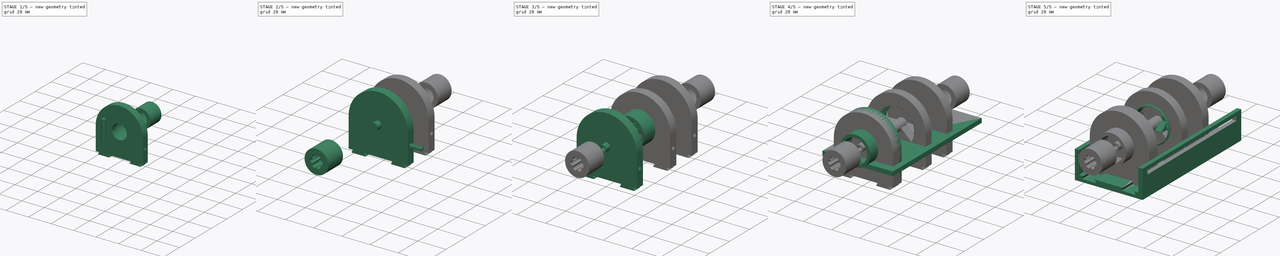
[diagram: build sequence overview — one tinted view per stage of 5, left to right]
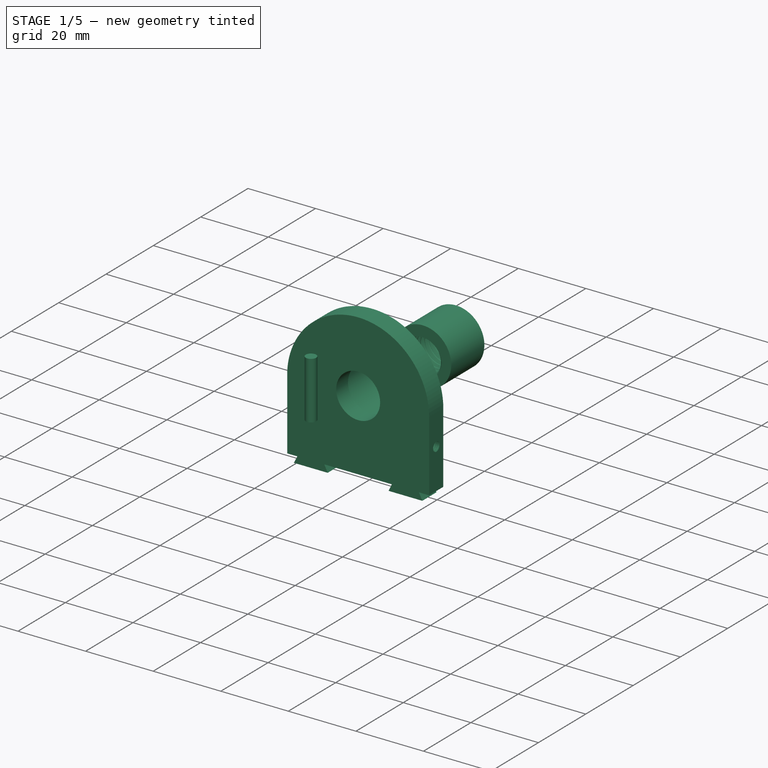
[diagram: stage 1 of 5 — iso view after this stage's code; geometry added in this stage tinted green]
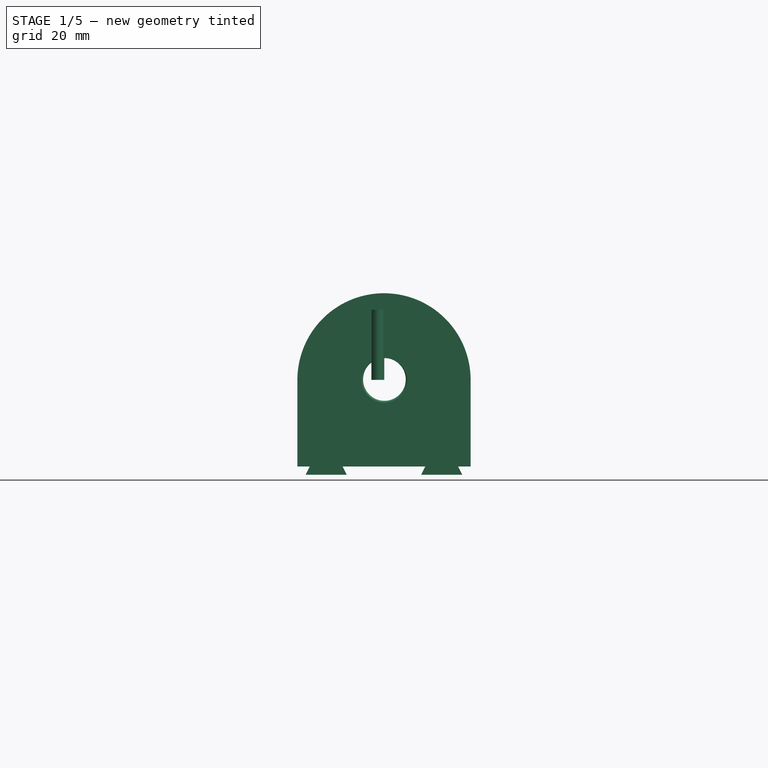
[diagram: stage 1 of 5 — front view after this stage's code; geometry added in this stage tinted green]
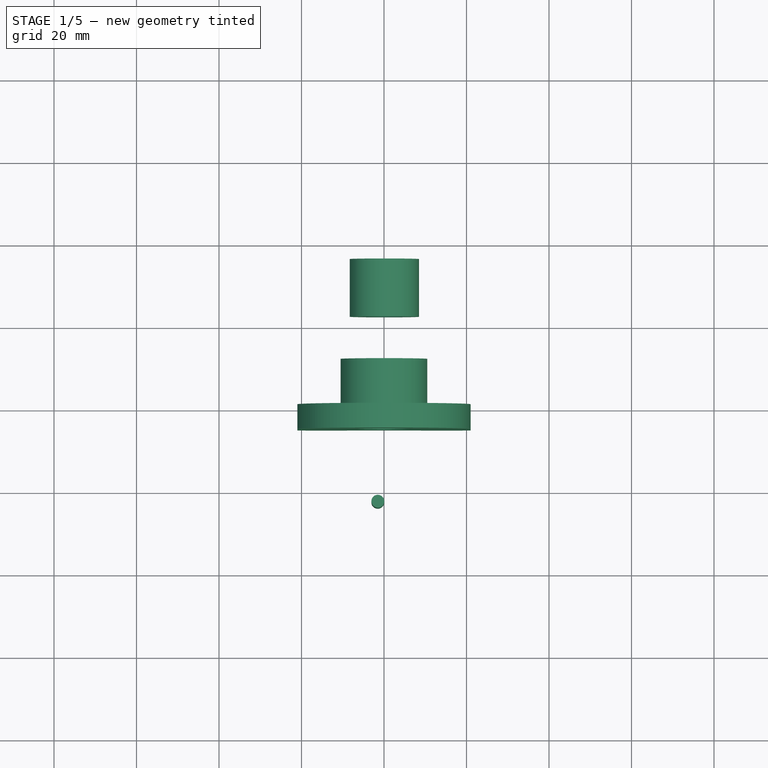
[diagram: stage 1 of 5 — top view after this stage's code; geometry added in this stage tinted green]
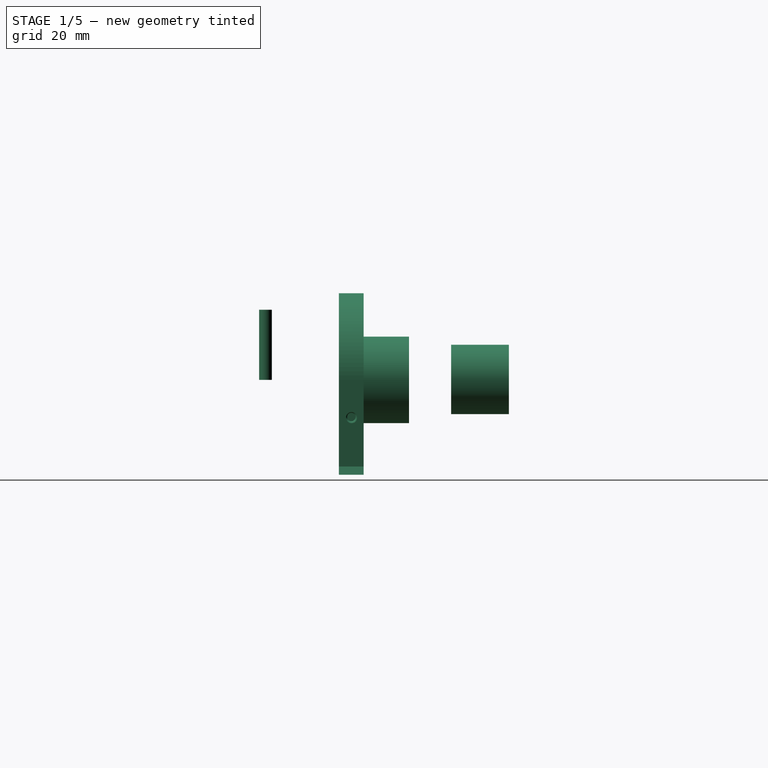
[diagram: stage 1 of 5 — right view after this stage's code; geometry added in this stage tinted green]
FCSTD DOCUMENT  (FreeCAD 0.20R29177 (Git))
Label: lenspcx02
License: All rights reserved
LicenseURL: http://en.wikipedia.org/wiki/All_rights_reserved
objects: Sketcher::SketchObject×25, PartDesign::Pad×14, Part::Cut×13, PartDesign::Pocket×11, Part::FeaturePython×11, PartDesign::Body×9, Part::Cylinder×8, Spreadsheet::Sheet×2, Part::Feature×1, PartDesign::Chamfer×1, Part::Box×1, Part::MultiFuse×1
note: 121 computed .brp shape members not serialized (recipe doc carries the construction recipe); baked Part::Feature solids carry a one-line shape summary decoded from their .brp

FEATURE [Part::Cylinder] Cylinder007  label="Fibre007"
  Angle = 360
  AttacherType = Attacher::AttachEngine3D
  FirstAngle = 0
  Height = 17
  Placement = pos=(-1.5,-2.6,0) rot=(0,0,1;0rad)
  Radius = 1.55
  SecondAngle = 0
FEATURE [Sketcher::SketchObject] Sketch020  label="FiberFixerAMain001"
  FullyConstrained = true
  MapMode = 5
  Support = -> [XY_Plane007]
  sketch-geometry (1):
    g0: Circle CenterX=0 CenterY=0 CenterZ=0 NormalX=0 NormalY=0 NormalZ=1 AngleXU=0 Radius=8.4
  constraints (2):
    c: Coincident(g0,g-1)
    c: Radius(g0) = 8.4
FEATURE [PartDesign::Pad] Pad011  label="FiberFixerAMain"
  Direction = (0,0,1)
  Length = 14
  Length2 = 100
  Profile = -> Sketch020
  Type = 0
FEATURE [PartDesign::Body] Body007  label="FibreFixerA"
  Group = -> [Sketch020,Pad011]
  Origin = -> Origin007
  Tip = -> Pad011
FEATURE [Part::FeaturePython] ThreadedRod009  label="12.5 mmx17.0-ThreadedRod"  # Fasteners workbench fastener (typed FeaturePython)
  Placement = pos=(0,0,16) rot=(0,0,1;0rad)
  diameter = 27
  diameterCustom = 12.5
  invert = false
  length = 17
  matchOuter = false
  offset = 0
  pitchCustom = 1.75
  thread = true
FEATURE [Part::Cut] Cut010  label="FibreFixer"
  Base = -> Body007
  Placement = pos=(0.1,42.4,0.1) rot=(1,0,0;4.71239rad)
  Tool = -> ThreadedRod009
FEATURE [Sketcher::SketchObject] Sketch021  label="MainSCHolderMain005"
  FullyConstrained = false
  MapMode = 5
  Placement = pos=(0,0,0) rot=(1,0,0;1.5708rad)
  Support = -> [XZ_Plane008]
  expr: Constraints[22] = <<Features001>>.SupportDepth
  expr: Constraints[23] = <<Features001>>.SupportDepth
  expr: Constraints[26] = <<Features001>>.SupportWidth
  expr: Constraints[27] = <<Features001>>.SupportWidth
  expr: Constraints[28] = <<Features001>>.RailDist - <<Features001>>.SupportWidth
  expr: Constraints[29] = <<Features001>>.SupportWidth + 2mm
  expr: Constraints[30] = <<Features001>>.SupportWidth + 2mm
  expr: Constraints[31] = <<Features001>>.SupportDepth / 2
  expr: Constraints[32] = <<Features001>>.SupportDepth / 2
  expr: Constraints[5] = <<Features001>>.MainWidth
  expr: Constraints[6] = <<Features001>>.MainWidth / 2
  sketch-geometry (12):
    g0: LineSegment StartX=21 StartY=3.22397e-06 StartZ=0 EndX=21 EndY=-21 EndZ=0
    g1: LineSegment StartX=21 StartY=-21 StartZ=0 EndX=18.0123 EndY=-21 EndZ=0
    g2: LineSegment StartX=-21 StartY=-21 StartZ=0 EndX=-21 EndY=-3.22397e-06 EndZ=0
    g3: ArcOfCircle CenterX=0 CenterY=0 CenterZ=0 NormalX=0 NormalY=0 NormalZ=1 AngleXU=0 Radius=21 StartAngle=1.53522e-07 EndAngle=3.14159
    g4: LineSegment StartX=-17.9877 StartY=-21 StartZ=0 EndX=-18.9877 EndY=-23 EndZ=0
    g5: LineSegment StartX=-18.9877 StartY=-23 StartZ=0 EndX=-8.98769 EndY=-23 EndZ=0
    g6: LineSegment StartX=-8.98769 StartY=-23 StartZ=0 EndX=-9.98769 EndY=-21 EndZ=0
    g7: LineSegment StartX=10.0123 StartY=-21 StartZ=0 EndX=9.01231 EndY=-23 EndZ=0
    g8: LineSegment StartX=9.01231 StartY=-23 StartZ=0 EndX=19.0123 EndY=-23 EndZ=0
    g9: LineSegment StartX=19.0123 StartY=-23 StartZ=0 EndX=18.0123 EndY=-21 EndZ=0
    g10: LineSegment StartX=10.0123 StartY=-21 StartZ=0 EndX=-9.98769 EndY=-21 EndZ=0
    g11: LineSegment StartX=-17.9877 StartY=-21 StartZ=0 EndX=-21 EndY=-21 EndZ=0
  constraints (33):
    c: Coincident(g0,g1)
    c: Coincident(g11,g2)
    c: Horizontal(g1)
    c: Vertical(g0)
    c: Vertical(g2)
    c: DistanceX(g11,g1) = 42
    c: DistanceY(g0,g0) = 21
    c: Symmetric(g2,g0,g-1)
    c: Coincident(g3,g-1)
    c: Coincident(g3,g2)
    c: Coincident(g3,g0)
    c: PointOnObject(g4,g1)
    c: Coincident(g4,g5)
    c: Horizontal(g5)
    c: Coincident(g5,g6)
    c: PointOnObject(g6,g1)
    c: Coincident(g7,g8)
    c: Horizontal(g8)
    c: Coincident(g8,g9)
    c: Coincident(g1,g9)
    c: Coincident(g10,g7)
    c: PointOnObject(g11,g4)
    c: DistanceY(g5,g6) = 2
    c: DistanceY(g7,g7) = 2
    c: Horizontal(g10)
    c: Coincident(g6,g10)
    c: DistanceX(g4,g6) = 8
    c: DistanceX(g7,g1) = 8
    c: DistanceX(g6,g7) = 20
    c: DistanceX(g5,g5) = 10
    c: DistanceX(g8,g8) = 10
    c: DistanceX(g4,g4) = 1
    c: DistanceX(g1,g8) = 1
FEATURE [PartDesign::Pad] Pad012  label="MainSCHolderMain004"
  Direction = (0,-1,-2e-16)
  Length = 6
  Length2 = 10
  Placement = pos=(0,0,0) rot=(1,0,0;1.5708rad)
  Profile = -> Sketch021
  ReferenceAxis = -> Sketch021 [N_Axis]
  Type = 0
  expr: Length = <<Features001>>.HolderDepth
FEATURE [Sketcher::SketchObject] Sketch022  label="SCFixer005"
  FullyConstrained = true
  MapMode = 5
  Placement = pos=(0,-6,0) rot=(1,0,0;1.5708rad)
  Support = -> [Pad012]
  expr: Constraints[0] = <<Features001>>.SCRadius + 4mm
  sketch-geometry (1):
    g0: Circle CenterX=0 CenterY=0 CenterZ=0 NormalX=0 NormalY=0 NormalZ=1 AngleXU=0 Radius=10.5
  constraints (2):
    c: Radius(g0) = 10.5
    c: Coincident(g0,g-1)
FEATURE [PartDesign::Pad] Pad013  label="SCFixer004"
  BaseFeature = -> Pad012
  Direction = (0,-1,-2e-16)
  Length = 11
  Length2 = 10
  Placement = pos=(0,0,0) rot=(1,0,0;1.5708rad)
  Profile = -> Sketch022
  ReferenceAxis = -> Sketch022 [N_Axis]
  Type = 0
  expr: Length = <<Features001>>.SCDepth
FEATURE [Sketcher::SketchObject] Sketch023  label="SCFixerHole005"
  FullyConstrained = true
  MapMode = 5
  Placement = pos=(0,-17,4e-16) rot=(1,0,0;1.5708rad)
  Support = -> [Pad013]
  expr: Constraints[1] = <<Features001>>.SCRadius + 1.9mm
  sketch-geometry (1):
    g0: Circle CenterX=0 CenterY=0 CenterZ=0 NormalX=0 NormalY=0 NormalZ=1 AngleXU=0 Radius=8.4
  constraints (2):
    c: Coincident(g0,g-1)
    c: Radius(g0) = 8.4
FEATURE [PartDesign::Pocket] Pocket009  label="SCFixerHole004"
  BaseFeature = -> Pad013
  Direction = (0,1,2e-16)
  Length = 12
  Length2 = 5
  Placement = pos=(0,0,0) rot=(1,0,0;1.5708rad)
  Profile = -> Sketch023
  ReferenceAxis = -> Sketch023 [N_Axis]
  Type = 0
  expr: Length = <<Features001>>.SCDepth + 1mm
FEATURE [Sketcher::SketchObject] Sketch024  label="SCHole003"
  FullyConstrained = true
  MapMode = 5
  Placement = pos=(0,-5,1.1e-15) rot=(1,0,0;1.5708rad)
  Support = -> [Pocket009]
  expr: Constraints[1] = <<Features001>>.SCRadius
  sketch-geometry (1):
    g0: Circle CenterX=0 CenterY=0 CenterZ=0 NormalX=0 NormalY=0 NormalZ=1 AngleXU=0 Radius=6.5
  constraints (2):
    c: Coincident(g0,g-1)
    c: Radius(g0) = 6.5
FEATURE [PartDesign::Pocket] Pocket010  label="SCHole002"
  BaseFeature = -> Pocket009
  Direction = (0,1,-2e-16)
  Length = 5
  Length2 = 5
  Placement = pos=(0,0,0) rot=(1,0,0;1.5708rad)
  Profile = -> Sketch024
  ReferenceAxis = -> Sketch024 [N_Axis]
  Type = 1
FEATURE [PartDesign::Body] Body008  label="MainSCHolderTmp003"
  Group = -> [Sketch021,Pad012,Sketch022,Pad013,Sketch023,Pocket009,Sketch024,Pocket010]
  Origin = -> Origin008
  Tip = -> Pocket010
FEATURE [Spreadsheet::Sheet] Spreadsheet001  label="Features001"
  cells = A2=MainWidth; B2(MainWidth)==42mm; A3=LensDiameter; B3(LensDiameter)==25mm; A4=HolderDepth; B4(HolderDepth)==6mm; A5=FiberDiam; B5(FiberDiam)==3mm; A6=SupportDepth; B6(SupportDepth)==2mm; A7=SupportWidth; B7(SupportWidth)==8mm; A8=BaseLength; B8(BaseLength)==100mm; A9=RailDist; B9(RailDist)==28mm; A10=SCRadius; B10(SCRadius)==6.5mm; A11=SCDepth; B11(SCDepth)==11mm
FEATURE [Part::FeaturePython] ThreadedRod010  label="M3x10.0-ThreadedRod006"  # Fasteners workbench fastener (typed FeaturePython)
  Placement = pos=(29.5,-3,-9) rot=(0,1,0;1.5708rad)
  diameter = 4
  diameterCustom = 6
  invert = false
  length = 10
  matchOuter = false
  offset = 0
  pitchCustom = 1
  thread = true
FEATURE [Part::Cut] Cut011  label="MainSCHolderTmp004"
  Base = -> Body008
  Tool = -> ThreadedRod010
FEATURE [Part::FeaturePython] ThreadedRod011  label="M3x10.0-ThreadedRod007"  # Fasteners workbench fastener (typed FeaturePython)
  Placement = pos=(-19.5,-3,-9) rot=(0,1,0;1.5708rad)
  diameter = 4
  diameterCustom = 6
  invert = false
  length = 10
  matchOuter = false
  offset = 0
  pitchCustom = 1
  thread = true
FEATURE [Part::Cut] Cut012  label="MainSCHolder001"
  Base = -> Cut011
  Placement = pos=(-1e-16,15.2,0) rot=(0,0,1;3.14159rad)
  Tool = -> ThreadedRod011
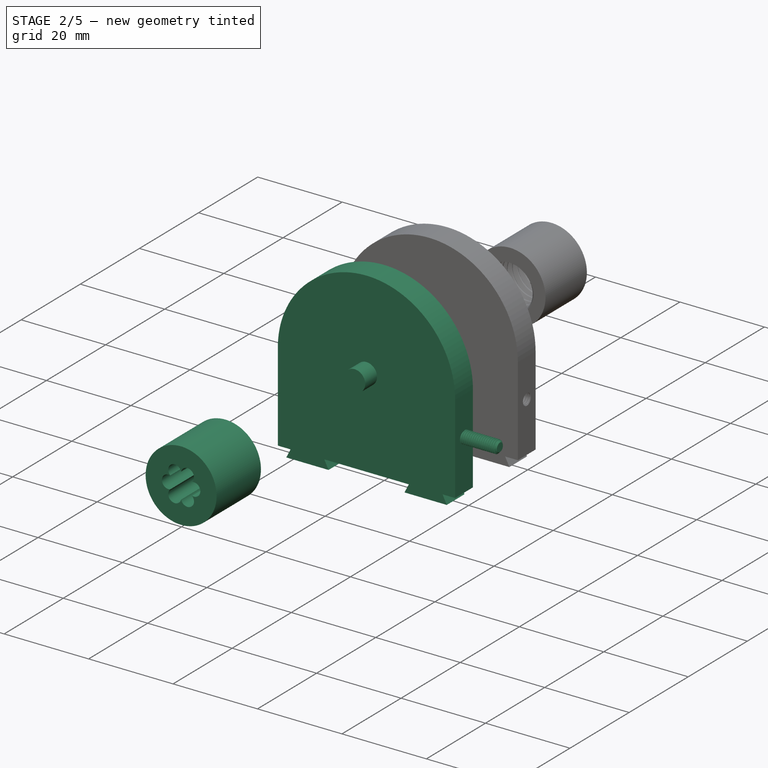
[diagram: stage 2 of 5 — iso view after this stage's code; geometry added in this stage tinted green]
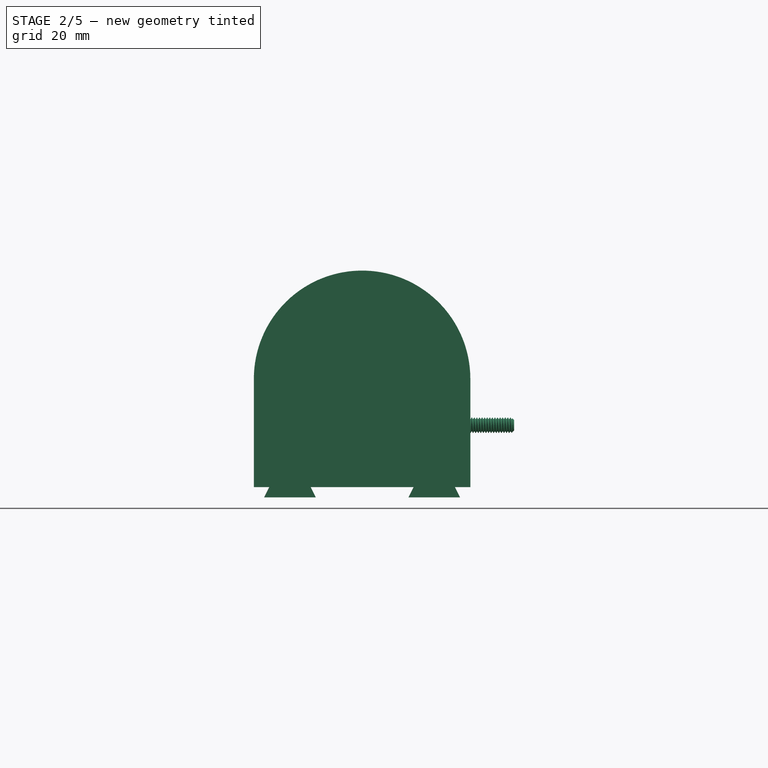
[diagram: stage 2 of 5 — front view after this stage's code; geometry added in this stage tinted green]
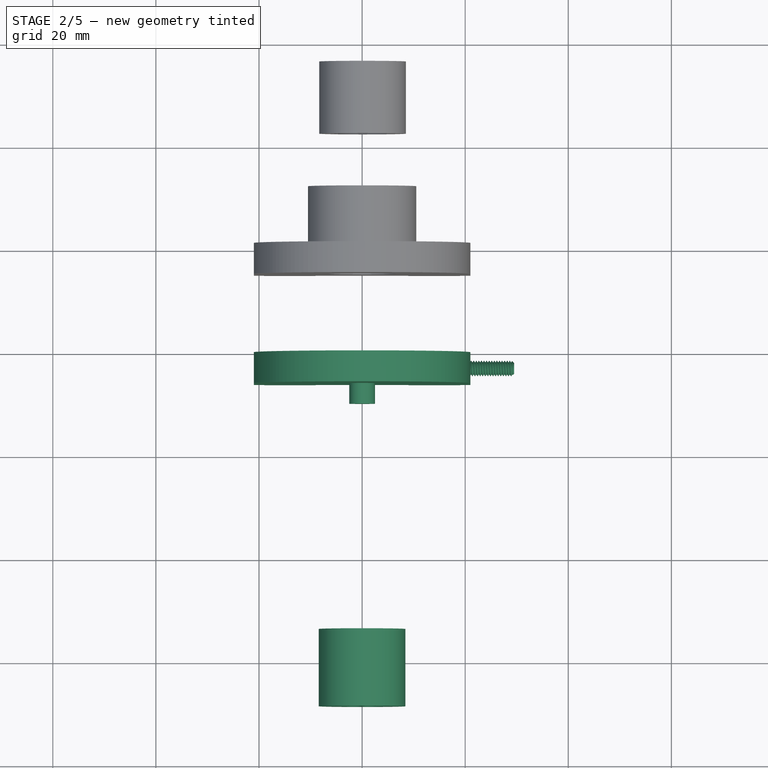
[diagram: stage 2 of 5 — top view after this stage's code; geometry added in this stage tinted green]
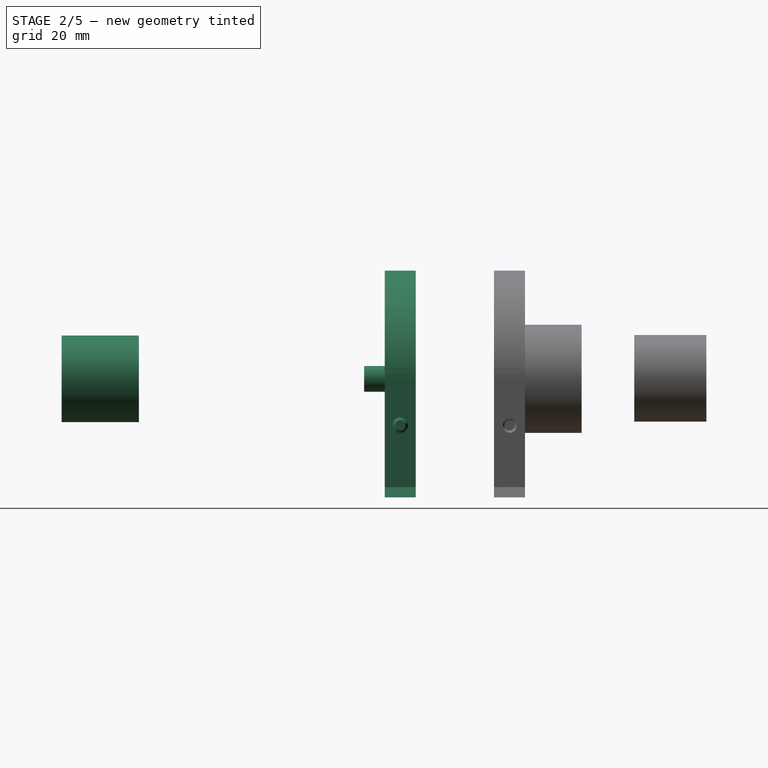
[diagram: stage 2 of 5 — right view after this stage's code; geometry added in this stage tinted green]
FEATURE [PartDesign::Body] Body002  label="FibreHolder"
  Group = -> [Sketch004,Pad002,Sketch015,Pad007]
  Origin = -> Origin002
  Tip = -> Pad007
FEATURE [Sketcher::SketchObject] Sketch016  label="MainSCHolderMain003"
  FullyConstrained = false
  MapMode = 5
  Placement = pos=(0,0,0) rot=(1,0,0;1.5708rad)
  Support = -> [XZ_Plane005]
  expr: Constraints[22] = <<Features>>.SupportDepth
  expr: Constraints[23] = <<Features>>.SupportDepth
  expr: Constraints[26] = <<Features>>.SupportWidth
  expr: Constraints[27] = <<Features>>.SupportWidth
  expr: Constraints[28] = <<Features>>.RailDist - <<Features>>.SupportWidth
  expr: Constraints[29] = <<Features>>.SupportWidth + 2mm
  expr: Constraints[30] = <<Features>>.SupportWidth + 2mm
  expr: Constraints[31] = <<Features>>.SupportDepth / 2
  expr: Constraints[32] = <<Features>>.SupportDepth / 2
  expr: Constraints[5] = <<Features>>.MainWidth
  expr: Constraints[6] = <<Features>>.MainWidth / 2
  sketch-geometry (12):
    g0: LineSegment StartX=21 StartY=3.22397e-06 StartZ=0 EndX=21 EndY=-21 EndZ=0
    g1: LineSegment StartX=21 StartY=-21 StartZ=0 EndX=18.0123 EndY=-21 EndZ=0
    g2: LineSegment StartX=-21 StartY=-21 StartZ=0 EndX=-21 EndY=-3.22397e-06 EndZ=0
    g3: ArcOfCircle CenterX=0 CenterY=0 CenterZ=0 NormalX=0 NormalY=0 NormalZ=1 AngleXU=0 Radius=21 StartAngle=1.53522e-07 EndAngle=3.14159
    g4: LineSegment StartX=-17.9877 StartY=-21 StartZ=0 EndX=-18.9877 EndY=-23 EndZ=0
    g5: LineSegment StartX=-18.9877 StartY=-23 StartZ=0 EndX=-8.98769 EndY=-23 EndZ=0
    g6: LineSegment StartX=-8.98769 StartY=-23 StartZ=0 EndX=-9.98769 EndY=-21 EndZ=0
    g7: LineSegment StartX=10.0123 StartY=-21 StartZ=0 EndX=9.01231 EndY=-23 EndZ=0
    g8: LineSegment StartX=9.01231 StartY=-23 StartZ=0 EndX=19.0123 EndY=-23 EndZ=0
    g9: LineSegment StartX=19.0123 StartY=-23 StartZ=0 EndX=18.0123 EndY=-21 EndZ=0
    g10: LineSegment StartX=10.0123 StartY=-21 StartZ=0 EndX=-9.98769 EndY=-21 EndZ=0
    g11: LineSegment StartX=-17.9877 StartY=-21 StartZ=0 EndX=-21 EndY=-21 EndZ=0
  constraints (33):
    c: Coincident(g0,g1)
    c: Coincident(g11,g2)
    c: Horizontal(g1)
    c: Vertical(g0)
    c: Vertical(g2)
    c: DistanceX(g11,g1) = 42
    c: DistanceY(g0,g0) = 21
    c: Symmetric(g2,g0,g-1)
    c: Coincident(g3,g-1)
    c: Coincident(g3,g2)
    c: Coincident(g3,g0)
    c: PointOnObject(g4,g1)
    c: Coincident(g4,g5)
    c: Horizontal(g5)
    c: Coincident(g5,g6)
    c: PointOnObject(g6,g1)
    c: Coincident(g7,g8)
    c: Horizontal(g8)
    c: Coincident(g8,g9)
    c: Coincident(g1,g9)
    c: Coincident(g10,g7)
    c: PointOnObject(g11,g4)
    c: DistanceY(g5,g6) = 2
    c: DistanceY(g7,g7) = 2
    c: Horizontal(g10)
    c: Coincident(g6,g10)
    c: DistanceX(g4,g6) = 8
    c: DistanceX(g7,g1) = 8
    c: DistanceX(g6,g7) = 20
    c: DistanceX(g5,g5) = 10
    c: DistanceX(g8,g8) = 10
    c: DistanceX(g4,g4) = 1
    c: DistanceX(g1,g8) = 1
FEATURE [PartDesign::Pad] Pad008  label="MainSCHolderMain002"
  Direction = (0,-1,-2e-16)
  Length = 6
  Length2 = 10
  Placement = pos=(0,0,0) rot=(1,0,0;1.5708rad)
  Profile = -> Sketch016
  ReferenceAxis = -> Sketch016 [N_Axis]
  Type = 0
  expr: Length = <<Features>>.HolderDepth
FEATURE [Sketcher::SketchObject] Sketch017  label="SCFixer003"
  FullyConstrained = true
  MapMode = 5
  Placement = pos=(0,-6,0) rot=(1,0,0;1.5708rad)
  Support = -> [Pad008]
  expr: Constraints[0] = <<Features>>.FiberDiam / 2 + 1mm
  sketch-geometry (1):
    g0: Circle CenterX=0 CenterY=0 CenterZ=0 NormalX=0 NormalY=0 NormalZ=1 AngleXU=0 Radius=2.5
  constraints (2):
    c: Radius(g0) = 2.5
    c: Coincident(g0,g-1)
FEATURE [PartDesign::Pad] Pad009  label="SCFixer002"
  BaseFeature = -> Pad008
  Direction = (0,-1,-2e-16)
  Length = 4
  Length2 = 10
  Placement = pos=(0,0,0) rot=(1,0,0;1.5708rad)
  Profile = -> Sketch017
  ReferenceAxis = -> Sketch017 [N_Axis]
  Type = 0
FEATURE [PartDesign::Body] Body005  label="MainFibreHolderTmp001"
  Group = -> [Sketch016,Pad008,Sketch017,Pad009,Sketch018,Pocket008]
  Origin = -> Origin005
  Tip = -> Pocket008
FEATURE [Part::FeaturePython] ThreadedRod007  label="M3x10.0-ThreadedRod004"  # Fasteners workbench fastener (typed FeaturePython)
  Placement = pos=(29.5,-3,-9) rot=(0,1,0;1.5708rad)
  diameter = 4
  diameterCustom = 6
  invert = false
  length = 10
  matchOuter = false
  offset = 0
  pitchCustom = 1
  thread = true
FEATURE [Sketcher::SketchObject] Sketch019  label="FibreHoldersMain001"
  FullyConstrained = true
  MapMode = 5
  Support = -> [XY_Plane006]
  sketch-geometry (1):
    g0: Circle CenterX=0 CenterY=0 CenterZ=0 NormalX=0 NormalY=0 NormalZ=1 AngleXU=0 Radius=8.4
  constraints (2):
    c: Coincident(g0,g-1)
    c: Radius(g0) = 8.4
FEATURE [PartDesign::Pad] Pad010  label="FibreHoldersMain"
  Direction = (0,0,1)
  Length = 15
  Length2 = 10
  Profile = -> Sketch019
  ReferenceAxis = -> Sketch019 [N_Axis]
  Type = 0
FEATURE [PartDesign::Body] Body006  label="FibresHolderTmp01"
  Group = -> [Sketch019,Pad010]
  Origin = -> Origin006
  Tip = -> Pad010
FEATURE [Part::Cylinder] Cylinder001  label="Fibre001"
  Angle = 360
  AttacherType = Attacher::AttachEngine3D
  FirstAngle = 0
  Height = 17
  Placement = pos=(1.5,2.6,0) rot=(0,0,1;0rad)
  Radius = 1.55
  SecondAngle = 0
FEATURE [Part::Cylinder] Cylinder002  label="Fibre002"
  Angle = 360
  AttacherType = Attacher::AttachEngine3D
  FirstAngle = 0
  Height = 17
  Radius = 2.5
  SecondAngle = 0
FEATURE [Part::Cylinder] Cylinder003  label="Fibre003"
  Angle = 360
  AttacherType = Attacher::AttachEngine3D
  FirstAngle = 0
  Height = 17
  Placement = pos=(1.5,-2.6,0) rot=(0,0,1;0rad)
  Radius = 1.55
  SecondAngle = 0
FEATURE [Part::Cylinder] Cylinder004  label="Fibre004"
  Angle = 360
  AttacherType = Attacher::AttachEngine3D
  FirstAngle = 0
  Height = 17
  Placement = pos=(3,0,0) rot=(0,0,1;0rad)
  Radius = 1.55
  SecondAngle = 0
FEATURE [Part::Cylinder] Cylinder005  label="Fibre005"
  Angle = 360
  AttacherType = Attacher::AttachEngine3D
  FirstAngle = 0
  Height = 17
  Placement = pos=(-3,0,0) rot=(0,0,1;0rad)
  Radius = 1.55
  SecondAngle = 0
FEATURE [Part::Cylinder] Cylinder006  label="Fibre006"
  Angle = 360
  AttacherType = Attacher::AttachEngine3D
  FirstAngle = 0
  Height = 17
  Placement = pos=(-1.5,2.6,0) rot=(0,0,1;0rad)
  Radius = 1.55
  SecondAngle = 0
FEATURE [Part::MultiFuse] Fusion  label="Fibres"
  Shapes = -> [Cylinder001,Cylinder002,Cylinder003,Cylinder004,Cylinder005,Cylinder006,Cylinder007]
FEATURE [Part::Cut] Cut009  label="FibresHolder"
  Base = -> Body006
  Placement = pos=(0,-53.7,-4e-16) rot=(1,0,0;1.5708rad)
  Tool = -> Fusion
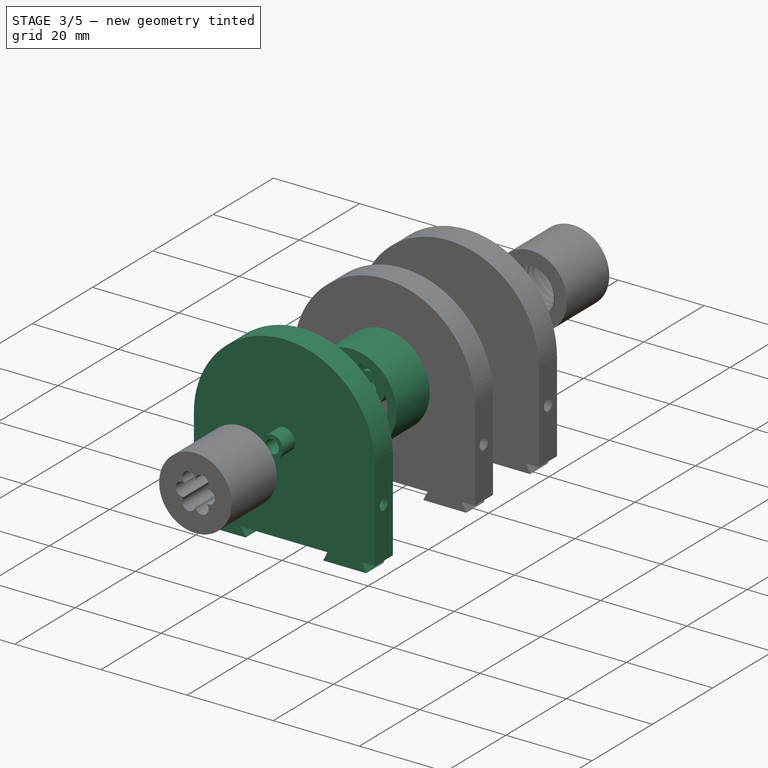
[diagram: stage 3 of 5 — iso view after this stage's code; geometry added in this stage tinted green]
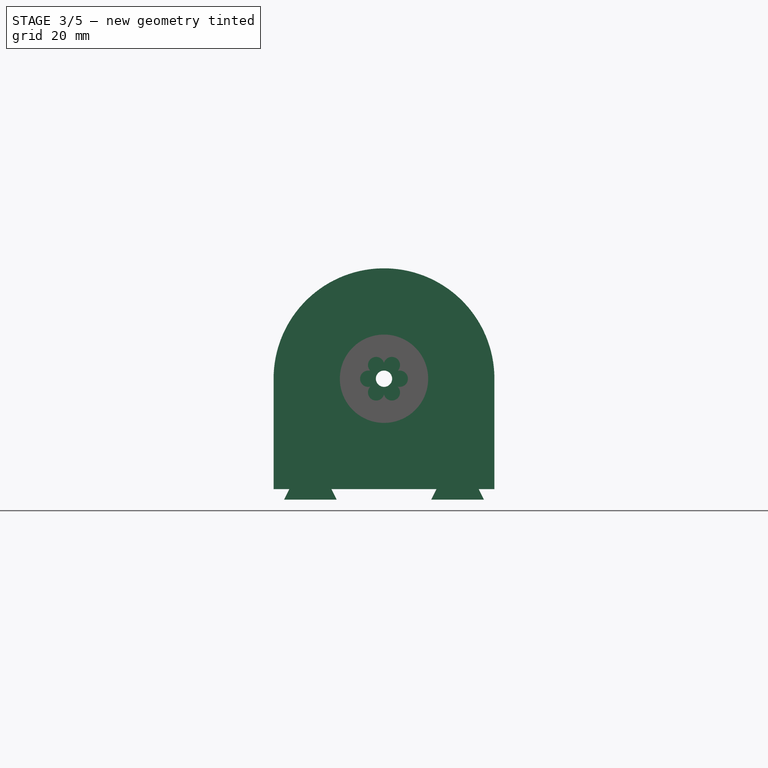
[diagram: stage 3 of 5 — front view after this stage's code; geometry added in this stage tinted green]
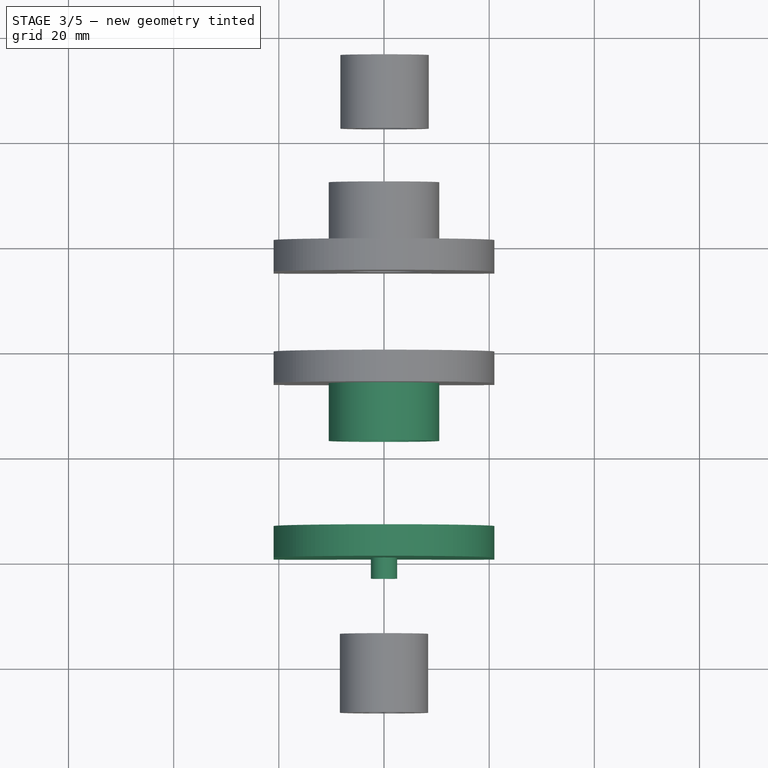
[diagram: stage 3 of 5 — top view after this stage's code; geometry added in this stage tinted green]
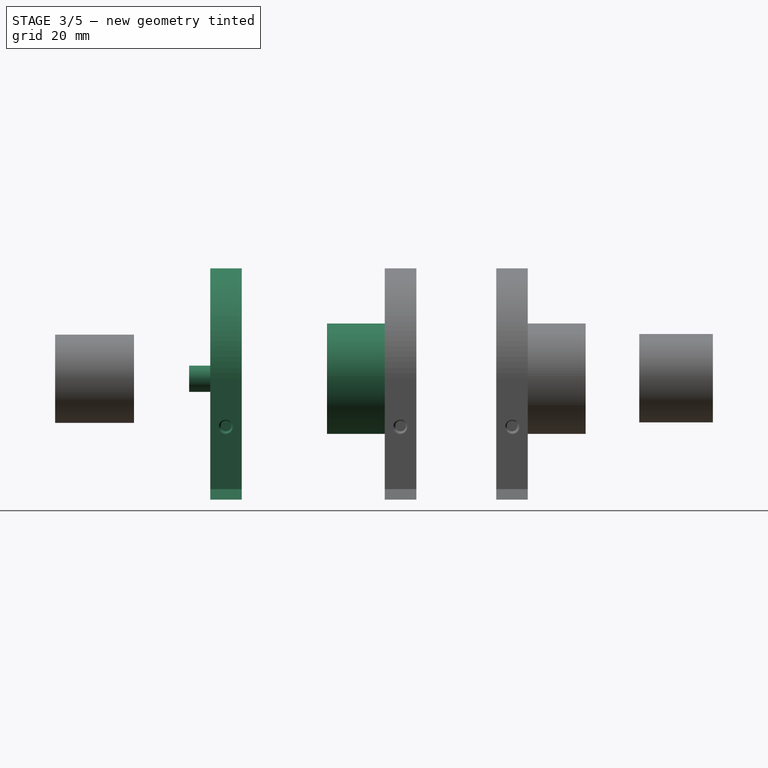
[diagram: stage 3 of 5 — right view after this stage's code; geometry added in this stage tinted green]
FEATURE [Sketcher::SketchObject] Sketch004  label="FibreHolderMain001"
  FullyConstrained = false
  MapMode = 5
  Placement = pos=(0,0,0) rot=(1,0,0;1.5708rad)
  Support = -> [XZ_Plane002]
  expr: Constraints[10] = <<Features>>.MainWidth / 2
  expr: Constraints[19] = <<Features>>.FiberDiam / 2 + 0.05mm
  expr: Constraints[1] = <<Features>>.FiberDiam + 0.5mm
  expr: Constraints[28] = <<Features>>.RailDist - <<Features>>.SupportWidth
  expr: Constraints[29] = <<Features>>.SupportWidth
  expr: Constraints[30] = <<Features>>.SupportWidth
  expr: Constraints[31] = <<Features>>.SupportWidth + 2mm
  expr: Constraints[32] = <<Features>>.SupportWidth + 2mm
  expr: Constraints[33] = <<Features>>.SupportDepth / 2
  expr: Constraints[34] = <<Features>>.SupportDepth
  expr: Constraints[35] = <<Features>>.SupportDepth
  expr: Constraints[36] = <<Features>>.SupportDepth / 2
  expr: Constraints[37] = (<<Features>>.RailDist - <<Features>>.SupportWidth) / 2
  expr: Constraints[3] = <<Features>>.MainWidth
  expr: Constraints[4] = <<Features>>.MainWidth / 2
  sketch-geometry (15):
    g0: ArcOfCircle CenterX=0 CenterY=0 CenterZ=0 NormalX=0 NormalY=0 NormalZ=1 AngleXU=0 Radius=3.5 StartAngle=0 EndAngle=3.14159
    g1: LineSegment StartX=-21 StartY=-21 StartZ=0 EndX=-18 EndY=-21 EndZ=0
    g2: LineSegment StartX=-21 StartY=-21 StartZ=0 EndX=-21 EndY=-17 EndZ=0
    g3: LineSegment StartX=-21 StartY=-17 StartZ=0 EndX=-3.5 EndY=0 EndZ=0
    g4: LineSegment StartX=3.5 StartY=4e-16 StartZ=0 EndX=21 EndY=-17 EndZ=0
    g5: LineSegment StartX=21 StartY=-17 StartZ=0 EndX=21 EndY=-21 EndZ=0
    g6: Circle CenterX=0 CenterY=0 CenterZ=0 NormalX=0 NormalY=0 NormalZ=1 AngleXU=0 Radius=1.55
    g7: LineSegment StartX=-18 StartY=-21 StartZ=0 EndX=-19 EndY=-23 EndZ=0
    g8: LineSegment StartX=-19 StartY=-23 StartZ=0 EndX=-9 EndY=-23 EndZ=0
    g9: LineSegment StartX=-9 StartY=-23 StartZ=0 EndX=-10 EndY=-21 EndZ=0
    g10: LineSegment StartX=10 StartY=-21 StartZ=0 EndX=9 EndY=-23 EndZ=0
    g11: LineSegment StartX=9 StartY=-23 StartZ=0 EndX=19 EndY=-23 EndZ=0
    g12: LineSegment StartX=19 StartY=-23 StartZ=0 EndX=18 EndY=-21 EndZ=0
    g13: LineSegment StartX=-10 StartY=-21 StartZ=0 EndX=10 EndY=-21 EndZ=0
    g14: LineSegment StartX=18 StartY=-21 StartZ=0 EndX=21 EndY=-21 EndZ=0
  constraints (42):
    c: Coincident(g0,g-1)
    c: Radius(g0) = 3.5
    c: Horizontal(g1)
    c: DistanceX(g1,g14) = 42
    c: DistanceY(g14,g0) = 21
    c: Coincident(g1,g2)
    c: Vertical(g2)
    c: Coincident(g2,g3)
    c: Coincident(g4,g5)
    c: Coincident(g5,g14)
    c: DistanceX(g1,g0) = 21
    c: Vertical(g5)
    c: Horizontal(g2,g4)
    c: DistanceY(g5,g5) = 4
    c: Coincident(g0,g3)
    c: Coincident(g0,g4)
    c: Horizontal(g0,g0)
    c: PointOnObject(g0,g-1)
    c: Coincident(g6,g0)
    c: Radius(g6) = 1.55
    c: Coincident(g7,g8)
    c: Horizontal(g8)
    c: Coincident(g8,g9)
    c: PointOnObject(g10,g1)
    c: Coincident(g10,g11)
    c: Horizontal(g11)
    c: Coincident(g11,g12)
    c: PointOnObject(g12,g1)
    c: DistanceX(g9,g10) = 20
    c: DistanceX(g7,g9) = 8
    c: DistanceX(g10,g12) = 8
    c: DistanceX(g8,g8) = 10
    c: DistanceX(g11,g11) = 10
    c: DistanceX(g9,g8) = 1
    c: DistanceY(g8,g9) = 2
    c: DistanceY(g10,g10) = 2
    c: DistanceX(g10,g10) = 1
    c: DistanceX(g9,g-1) = 10
    c: Coincident(g1,g7)
    c: Coincident(g13,g9)
    c: PointOnObject(g13,g10)
    c: PointOnObject(g14,g12)
FEATURE [Spreadsheet::Sheet] Spreadsheet  label="Features"
  cells = A2=MainWidth; B2(MainWidth)==42mm; A3=LensDiameter; B3(LensDiameter)==25mm; A4=HolderDepth; B4(HolderDepth)==6mm; A5=FiberDiam; B5(FiberDiam)==3mm; A6=SupportDepth; B6(SupportDepth)==2mm; A7=SupportWidth; B7(SupportWidth)==8mm; A8=BaseLength; B8(BaseLength)==100mm; A9=RailDist; B9(RailDist)==28mm; A10=SCRadius; B10(SCRadius)==6.5mm; A11=SCDepth; B11(SCDepth)==11mm
FEATURE [PartDesign::Pad] Pad002  label="FibreHolderMain01"
  Direction = (0,-1,-2e-16)
  Length = 6
  Length2 = 10
  Placement = pos=(0,0,0) rot=(1,0,0;1.5708rad)
  Profile = -> Sketch004
  ReferenceAxis = -> Sketch004 [N_Axis]
  Type = 0
  expr: Length = <<Features>>.HolderDepth
FEATURE [Sketcher::SketchObject] Sketch011  label="MainSCHolderMain001"
  FullyConstrained = false
  MapMode = 5
  Placement = pos=(0,0,0) rot=(1,0,0;1.5708rad)
  Support = -> [XZ_Plane004]
  expr: Constraints[22] = <<Features>>.SupportDepth
  expr: Constraints[23] = <<Features>>.SupportDepth
  expr: Constraints[26] = <<Features>>.SupportWidth
  expr: Constraints[27] = <<Features>>.SupportWidth
  expr: Constraints[28] = <<Features>>.RailDist - <<Features>>.SupportWidth
  expr: Constraints[29] = <<Features>>.SupportWidth + 2mm
  expr: Constraints[30] = <<Features>>.SupportWidth + 2mm
  expr: Constraints[31] = <<Features>>.SupportDepth / 2
  expr: Constraints[32] = <<Features>>.SupportDepth / 2
  expr: Constraints[5] = <<Features>>.MainWidth
  expr: Constraints[6] = <<Features>>.MainWidth / 2
  sketch-geometry (12):
    g0: LineSegment StartX=21 StartY=3.22397e-06 StartZ=0 EndX=21 EndY=-21 EndZ=0
    g1: LineSegment StartX=21 StartY=-21 StartZ=0 EndX=18.0123 EndY=-21 EndZ=0
    g2: LineSegment StartX=-21 StartY=-21 StartZ=0 EndX=-21 EndY=-3.22397e-06 EndZ=0
    g3: ArcOfCircle CenterX=0 CenterY=0 CenterZ=0 NormalX=0 NormalY=0 NormalZ=1 AngleXU=0 Radius=21 StartAngle=1.53522e-07 EndAngle=3.14159
    g4: LineSegment StartX=-17.9877 StartY=-21 StartZ=0 EndX=-18.9877 EndY=-23 EndZ=0
    g5: LineSegment StartX=-18.9877 StartY=-23 StartZ=0 EndX=-8.98769 EndY=-23 EndZ=0
    g6: LineSegment StartX=-8.98769 StartY=-23 StartZ=0 EndX=-9.98769 EndY=-21 EndZ=0
    g7: LineSegment StartX=10.0123 StartY=-21 StartZ=0 EndX=9.01231 EndY=-23 EndZ=0
    g8: LineSegment StartX=9.01231 StartY=-23 StartZ=0 EndX=19.0123 EndY=-23 EndZ=0
    g9: LineSegment StartX=19.0123 StartY=-23 StartZ=0 EndX=18.0123 EndY=-21 EndZ=0
    g10: LineSegment StartX=10.0123 StartY=-21 StartZ=0 EndX=-9.98769 EndY=-21 EndZ=0
    g11: LineSegment StartX=-17.9877 StartY=-21 StartZ=0 EndX=-21 EndY=-21 EndZ=0
  constraints (33):
    c: Coincident(g0,g1)
    c: Coincident(g11,g2)
    c: Horizontal(g1)
    c: Vertical(g0)
    c: Vertical(g2)
    c: DistanceX(g11,g1) = 42
    c: DistanceY(g0,g0) = 21
    c: Symmetric(g2,g0,g-1)
    c: Coincident(g3,g-1)
    c: Coincident(g3,g2)
    c: Coincident(g3,g0)
    c: PointOnObject(g4,g1)
    c: Coincident(g4,g5)
    c: Horizontal(g5)
    c: Coincident(g5,g6)
    c: PointOnObject(g6,g1)
    c: Coincident(g7,g8)
    c: Horizontal(g8)
    c: Coincident(g8,g9)
    c: Coincident(g1,g9)
    c: Coincident(g10,g7)
    c: PointOnObject(g11,g4)
    c: DistanceY(g5,g6) = 2
    c: DistanceY(g7,g7) = 2
    c: Horizontal(g10)
    c: Coincident(g6,g10)
    c: DistanceX(g4,g6) = 8
    c: DistanceX(g7,g1) = 8
    c: DistanceX(g6,g7) = 20
    c: DistanceX(g5,g5) = 10
    c: DistanceX(g8,g8) = 10
    c: DistanceX(g4,g4) = 1
    c: DistanceX(g1,g8) = 1
FEATURE [PartDesign::Pad] Pad005  label="MainSCHolderMain"
  Direction = (0,-1,-2e-16)
  Length = 6
  Length2 = 10
  Placement = pos=(0,0,0) rot=(1,0,0;1.5708rad)
  Profile = -> Sketch011
  ReferenceAxis = -> Sketch011 [N_Axis]
  Type = 0
  expr: Length = <<Features>>.HolderDepth
FEATURE [Sketcher::SketchObject] Sketch012  label="SCFixer001"
  FullyConstrained = true
  MapMode = 5
  Placement = pos=(0,-6,0) rot=(1,0,0;1.5708rad)
  Support = -> [Pad005]
  expr: Constraints[0] = <<Features>>.SCRadius + 4mm
  sketch-geometry (1):
    g0: Circle CenterX=0 CenterY=0 CenterZ=0 NormalX=0 NormalY=0 NormalZ=1 AngleXU=0 Radius=10.5
  constraints (2):
    c: Radius(g0) = 10.5
    c: Coincident(g0,g-1)
FEATURE [Part::FeaturePython] ThreadedRod005  label="M3x10.0-ThreadedRod002"  # Fasteners workbench fastener (typed FeaturePython)
  Placement = pos=(29.5,-3,-9) rot=(0,1,0;1.5708rad)
  diameter = 4
  diameterCustom = 6
  invert = false
  length = 10
  matchOuter = false
  offset = 0
  pitchCustom = 1
  thread = true
FEATURE [PartDesign::Pad] Pad006  label="SCFixer"
  BaseFeature = -> Pad005
  Direction = (0,-1,-2e-16)
  Length = 11
  Length2 = 10
  Placement = pos=(0,0,0) rot=(1,0,0;1.5708rad)
  Profile = -> Sketch012
  ReferenceAxis = -> Sketch012 [N_Axis]
  Type = 0
  expr: Length = <<Features>>.SCDepth
FEATURE [Sketcher::SketchObject] Sketch013  label="SCFixerHole001"
  FullyConstrained = true
  MapMode = 5
  Placement = pos=(0,-17,4e-16) rot=(1,0,0;1.5708rad)
  Support = -> [Pad006]
  expr: Constraints[1] = <<Features>>.SCRadius + 1.9mm
  sketch-geometry (1):
    g0: Circle CenterX=0 CenterY=0 CenterZ=0 NormalX=0 NormalY=0 NormalZ=1 AngleXU=0 Radius=8.4
  constraints (2):
    c: Coincident(g0,g-1)
    c: Radius(g0) = 8.4
FEATURE [PartDesign::Pocket] Pocket006  label="SCFixerHole"
  BaseFeature = -> Pad006
  Direction = (0,1,2e-16)
  Length = 12
  Length2 = 5
  Placement = pos=(0,0,0) rot=(1,0,0;1.5708rad)
  Profile = -> Sketch013
  ReferenceAxis = -> Sketch013 [N_Axis]
  Type = 0
  expr: Length = <<Features>>.SCDepth + 1mm
FEATURE [Sketcher::SketchObject] Sketch014  label="SCHole001"
  FullyConstrained = true
  MapMode = 5
  Placement = pos=(0,-5,1.1e-15) rot=(1,0,0;1.5708rad)
  Support = -> [Pocket006]
  expr: Constraints[1] = <<Features>>.SCRadius
  sketch-geometry (1):
    g0: Circle CenterX=0 CenterY=0 CenterZ=0 NormalX=0 NormalY=0 NormalZ=1 AngleXU=0 Radius=6.5
  constraints (2):
    c: Coincident(g0,g-1)
    c: Radius(g0) = 6.5
FEATURE [PartDesign::Pocket] Pocket007  label="SCHole"
  BaseFeature = -> Pocket006
  Direction = (0,1,-2e-16)
  Length = 5
  Length2 = 5
  Placement = pos=(0,0,0) rot=(1,0,0;1.5708rad)
  Profile = -> Sketch014
  ReferenceAxis = -> Sketch014 [N_Axis]
  Type = 1
FEATURE [PartDesign::Body] Body004  label="MainSCHolderTmp01"
  Group = -> [Sketch011,Pad005,Sketch012,Pad006,Sketch013,Pocket006,Sketch014,Pocket007]
  Origin = -> Origin004
  Tip = -> Pocket007
FEATURE [Part::Cut] Cut005  label="MainSCHolderTmp02"
  Base = -> Body004
  Tool = -> ThreadedRod005
FEATURE [Sketcher::SketchObject] Sketch015  label="FibreHolderExt001"
  FullyConstrained = true
  MapMode = 5
  Placement = pos=(0,-6,0) rot=(1,0,0;1.5708rad)
  Support = -> [Pad002]
  expr: Constraints[1] = <<Features>>.FiberDiam + 0.5mm
  expr: Constraints[3] = <<Features>>.FiberDiam / 2 + 0.05mm
  sketch-geometry (2):
    g0: Circle CenterX=0 CenterY=0 CenterZ=0 NormalX=0 NormalY=0 NormalZ=1 AngleXU=0 Radius=3.5
    g1: Circle CenterX=0 CenterY=0 CenterZ=0 NormalX=0 NormalY=0 NormalZ=1 AngleXU=0 Radius=1.55
  constraints (4):
    c: Coincident(g0,g-1)
    c: Radius(g0) = 3.5
    c: Coincident(g1,g0)
    c: Radius(g1) = 1.55
FEATURE [PartDesign::Pad] Pad007  label="FibreHolderExt"
  BaseFeature = -> Pad002
  Direction = (0,-1,-2e-16)
  Length = 5
  Length2 = 10
  Placement = pos=(0,0,0) rot=(1,0,0;1.5708rad)
  Profile = -> Sketch015
  ReferenceAxis = -> Sketch015 [N_Axis]
  Type = 0
FEATURE [Sketcher::SketchObject] Sketch018  label="SCFixerHole003"
  FullyConstrained = true
  MapMode = 5
  Placement = pos=(0,-10,-1.9e-15) rot=(1,0,0;1.5708rad)
  Support = -> [Pad009]
  expr: Constraints[1] = <<Features>>.FiberDiam / 2 + 0.05mm
  sketch-geometry (1):
    g0: Circle CenterX=0 CenterY=0 CenterZ=0 NormalX=0 NormalY=0 NormalZ=1 AngleXU=0 Radius=1.55
  constraints (2):
    c: Coincident(g0,g-1)
    c: Radius(g0) = 1.55
FEATURE [PartDesign::Pocket] Pocket008  label="SCFixerHole002"
  BaseFeature = -> Pad009
  Direction = (0,1,4e-16)
  Length = 12
  Length2 = 5
  Placement = pos=(0,0,0) rot=(1,0,0;1.5708rad)
  Profile = -> Sketch018
  ReferenceAxis = -> Sketch018 [N_Axis]
  Type = 1
FEATURE [Part::FeaturePython] ThreadedRod008  label="M3x10.0-ThreadedRod005"  # Fasteners workbench fastener (typed FeaturePython)
  Placement = pos=(-19.5,-3,-9) rot=(0,1,0;1.5708rad)
  diameter = 4
  diameterCustom = 6
  invert = false
  length = 10
  matchOuter = false
  offset = 0
  pitchCustom = 1
  thread = true
FEATURE [Part::Cut] Cut007  label="MainFibreHolderTmp002"
  Base = -> Body005
  Tool = -> ThreadedRod007
FEATURE [Part::Cut] Cut008  label="MainFibreHolder"
  Base = -> Cut007
  Placement = pos=(0,-33.2,0) rot=(0,0,1;0rad)
  Tool = -> ThreadedRod008
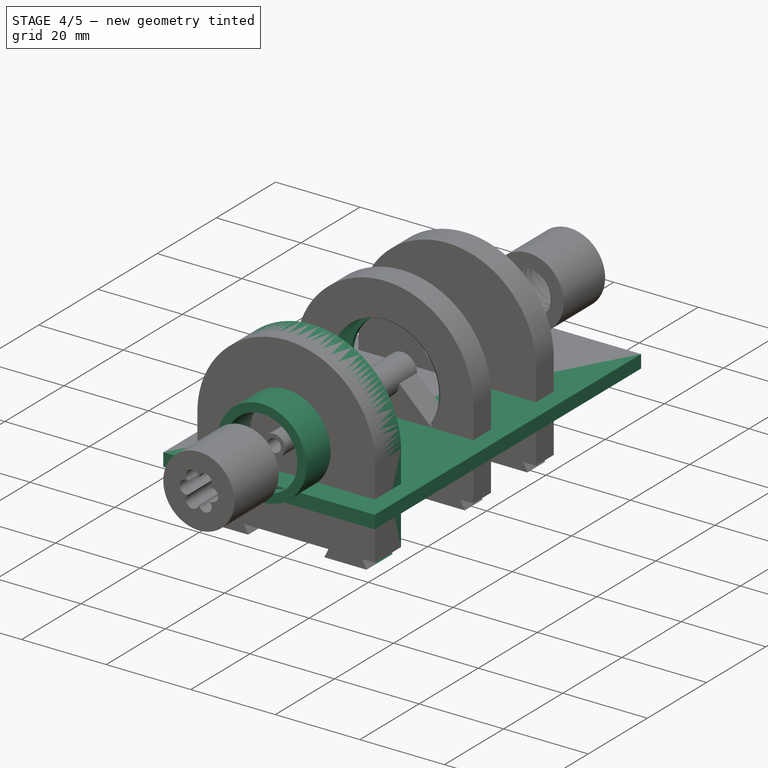
[diagram: stage 4 of 5 — iso view after this stage's code; geometry added in this stage tinted green]
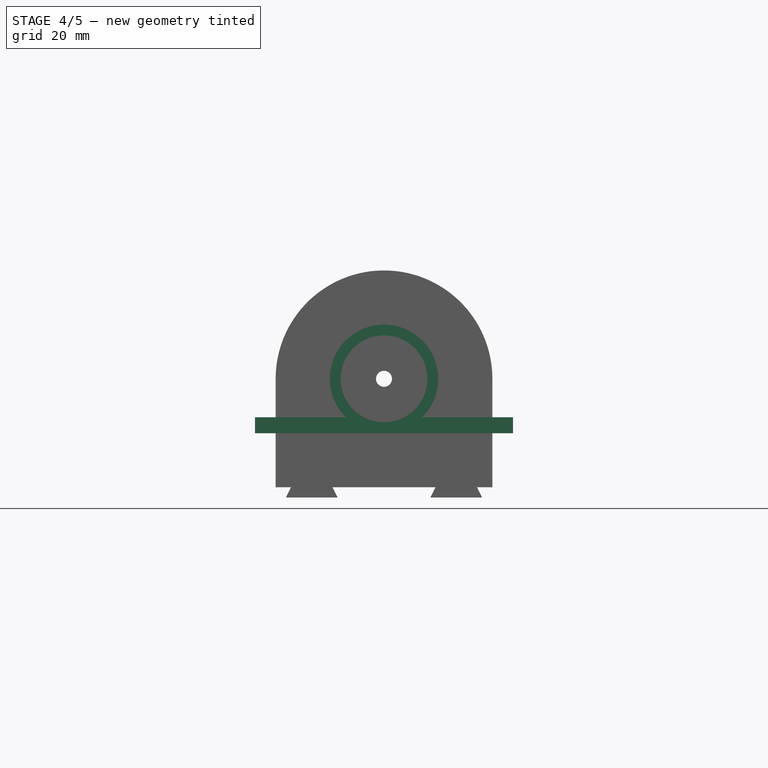
[diagram: stage 4 of 5 — front view after this stage's code; geometry added in this stage tinted green]
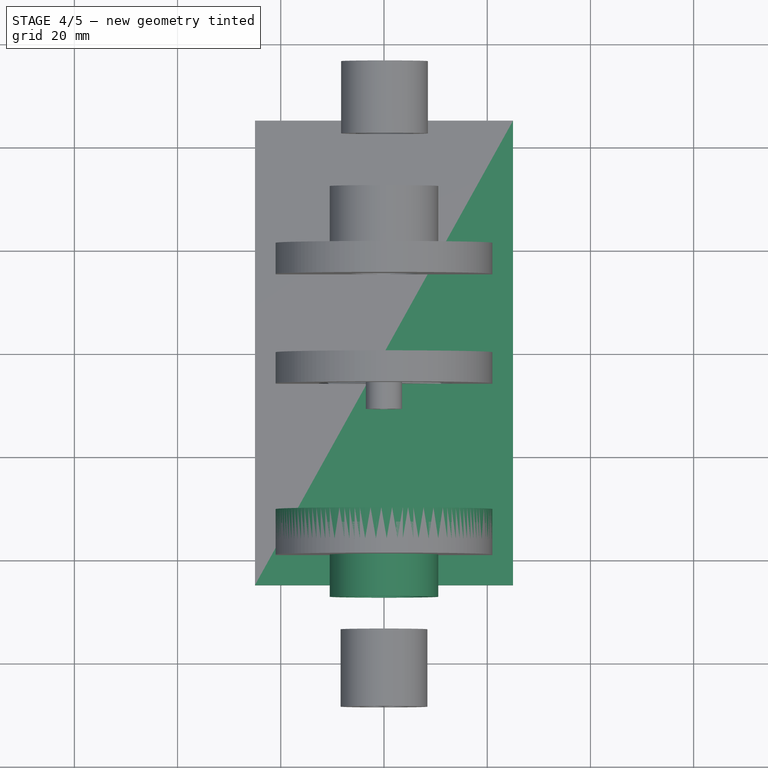
[diagram: stage 4 of 5 — top view after this stage's code; geometry added in this stage tinted green]
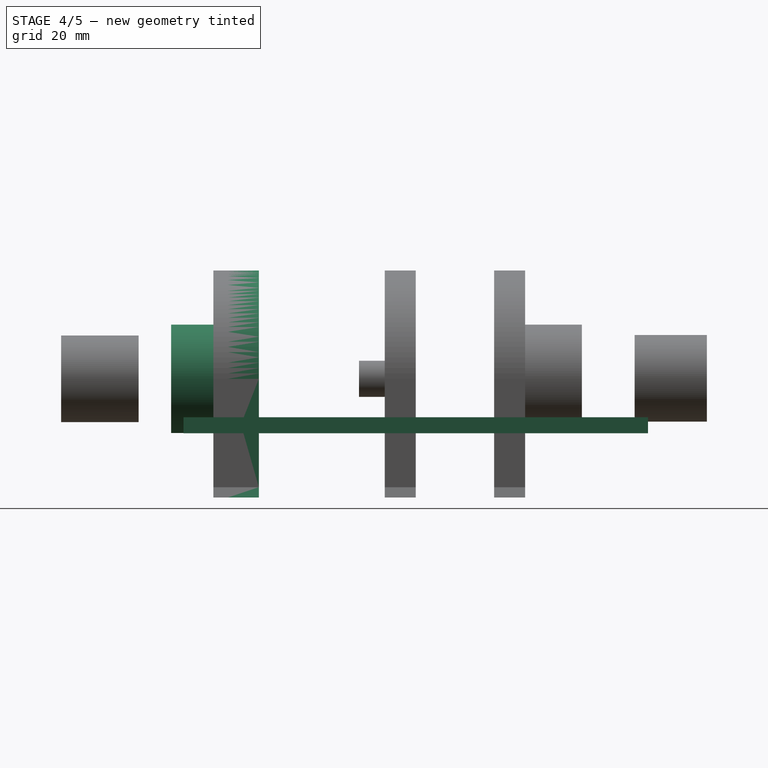
[diagram: stage 4 of 5 — right view after this stage's code; geometry added in this stage tinted green]
FEATURE [Part::Feature] iges_38267  label="PCXlens1"
  Placement = pos=(0,-1,0) rot=(1,0,0;1.5708rad)
  shape: bbox 35.42 x 8 x 35.42 mm, 5 faces, 0 solids (baked)
FEATURE [Sketcher::SketchObject] Sketch  label="LensHolderMain001"
  FullyConstrained = false
  MapMode = 5
  Placement = pos=(0,0,0) rot=(1,0,0;1.5708rad)
  Support = -> [XZ_Plane]
  expr: Constraints[22] = <<Features>>.SupportDepth
  expr: Constraints[23] = <<Features>>.SupportDepth
  expr: Constraints[26] = <<Features>>.SupportWidth
  expr: Constraints[27] = <<Features>>.SupportWidth
  expr: Constraints[28] = <<Features>>.RailDist - <<Features>>.SupportWidth
  expr: Constraints[29] = <<Features>>.SupportWidth + 2mm
  expr: Constraints[30] = <<Features>>.SupportWidth + 2mm
  expr: Constraints[31] = <<Features>>.SupportDepth / 2
  expr: Constraints[32] = <<Features>>.SupportDepth / 2
  expr: Constraints[5] = <<Features>>.MainWidth
  expr: Constraints[6] = <<Features>>.MainWidth / 2
  sketch-geometry (12):
    g0: LineSegment StartX=21 StartY=3.22397e-06 StartZ=0 EndX=21 EndY=-21 EndZ=0
    g1: LineSegment StartX=21 StartY=-21 StartZ=0 EndX=18.0123 EndY=-21 EndZ=0
    g2: LineSegment StartX=-21 StartY=-21 StartZ=0 EndX=-21 EndY=-3.22397e-06 EndZ=0
    g3: ArcOfCircle CenterX=0 CenterY=0 CenterZ=0 NormalX=0 NormalY=0 NormalZ=1 AngleXU=0 Radius=21 StartAngle=1.53522e-07 EndAngle=3.14159
    g4: LineSegment StartX=-17.9877 StartY=-21 StartZ=0 EndX=-18.9877 EndY=-23 EndZ=0
    g5: LineSegment StartX=-18.9877 StartY=-23 StartZ=0 EndX=-8.98769 EndY=-23 EndZ=0
    g6: LineSegment StartX=-8.98769 StartY=-23 StartZ=0 EndX=-9.98769 EndY=-21 EndZ=0
    g7: LineSegment StartX=10.0123 StartY=-21 StartZ=0 EndX=9.01231 EndY=-23 EndZ=0
    g8: LineSegment StartX=9.01231 StartY=-23 StartZ=0 EndX=19.0123 EndY=-23 EndZ=0
    g9: LineSegment StartX=19.0123 StartY=-23 StartZ=0 EndX=18.0123 EndY=-21 EndZ=0
    g10: LineSegment StartX=10.0123 StartY=-21 StartZ=0 EndX=-9.98769 EndY=-21 EndZ=0
    g11: LineSegment StartX=-17.9877 StartY=-21 StartZ=0 EndX=-21 EndY=-21 EndZ=0
  constraints (33):
    c: Coincident(g0,g1)
    c: Coincident(g11,g2)
    c: Horizontal(g1)
    c: Vertical(g0)
    c: Vertical(g2)
    c: DistanceX(g11,g1) = 42
    c: DistanceY(g0,g0) = 21
    c: Symmetric(g2,g0,g-1)
    c: Coincident(g3,g-1)
    c: Coincident(g3,g2)
    c: Coincident(g3,g0)
    c: PointOnObject(g4,g1)
    c: Coincident(g4,g5)
    c: Horizontal(g5)
    c: Coincident(g5,g6)
    c: PointOnObject(g6,g1)
    c: Coincident(g7,g8)
    c: Horizontal(g8)
    c: Coincident(g8,g9)
    c: Coincident(g1,g9)
    c: Coincident(g10,g7)
    c: PointOnObject(g11,g4)
    c: DistanceY(g5,g6) = 2
    c: DistanceY(g7,g7) = 2
    c: Horizontal(g10)
    c: Coincident(g6,g10)
    c: DistanceX(g4,g6) = 8
    c: DistanceX(g7,g1) = 8
    c: DistanceX(g6,g7) = 20
    c: DistanceX(g5,g5) = 10
    c: DistanceX(g8,g8) = 10
    c: DistanceX(g4,g4) = 1
    c: DistanceX(g1,g8) = 1
FEATURE [PartDesign::Pad] Pad  label="LensHolderMain01"
  Direction = (0,-1,-2e-16)
  Length = 6
  Length2 = 10
  Placement = pos=(0,0,0) rot=(1,0,0;1.5708rad)
  Profile = -> Sketch
  ReferenceAxis = -> Sketch [N_Axis]
  Type = 0
  expr: Length = <<Features>>.HolderDepth
FEATURE [Sketcher::SketchObject] Sketch001  label="LensHoleA001"
  FullyConstrained = true
  MapMode = 5
  Placement = pos=(0,-6,0) rot=(1,0,0;1.5708rad)
  Support = -> [Pad]
  expr: Constraints[0] = <<Features>>.LensDiameter / 2 - 1mm
  sketch-geometry (1):
    g0: Circle CenterX=0 CenterY=0 CenterZ=0 NormalX=0 NormalY=0 NormalZ=1 AngleXU=0 Radius=11.5
  constraints (2):
    c: Radius(g0) = 11.5
    c: Coincident(g0,g-1)
FEATURE [PartDesign::Pocket] Pocket  label="LensHoleA01"
  BaseFeature = -> Pad
  Direction = (0,1,2e-16)
  Length = 5
  Length2 = 5
  Placement = pos=(0,0,0) rot=(1,0,0;1.5708rad)
  Profile = -> Sketch001
  ReferenceAxis = -> Sketch001 [N_Axis]
  Type = 0
FEATURE [Sketcher::SketchObject] Sketch002  label="LensHoleB001"
  FullyConstrained = true
  MapMode = 5
  Placement = pos=(0,-1,0) rot=(1,0,0;1.5708rad)
  Support = -> [Pocket]
  expr: Constraints[1] = <<Features>>.LensDiameter / 2 - 1mm
  sketch-geometry (1):
    g0: Circle CenterX=0 CenterY=0 CenterZ=0 NormalX=0 NormalY=0 NormalZ=1 AngleXU=0 Radius=11.5
  constraints (2):
    c: Coincident(g0,g-1)
    c: Radius(g0) = 11.5
FEATURE [PartDesign::Pocket] Pocket001  label="LensHoleB01"
  BaseFeature = -> Pocket
  Direction = (0,1,2e-16)
  Length = 5
  Length2 = 5
  Placement = pos=(0,0,0) rot=(1,0,0;1.5708rad)
  Profile = -> Sketch002
  ReferenceAxis = -> Sketch002 [N_Axis]
  Type = 1
FEATURE [PartDesign::Body] Body  label="MainLensHolderTmp"
  Group = -> [Sketch,Pad,Sketch001,Pocket,Sketch002,Pocket001]
  Origin = -> Origin
  Tip = -> Pocket001
FEATURE [Part::FeaturePython] ThreadedRod  label="26.5 mmx6.0-ThreadedRod"  # Fasteners workbench fastener (typed FeaturePython)
  Placement = pos=(0,-7,-1e-15) rot=(1,0,0;1.5708rad)
  diameter = 27
  diameterCustom = 26.5
  invert = false
  length = 6
  matchOuter = false
  offset = 0
  pitchCustom = 1
  thread = true
  expr: diameterCustom = <<Features>>.LensDiameter + 1.5mm
FEATURE [Part::Cut] Cut  label="MainLensHolderTmp01"
  Base = -> Body
  Tool = -> ThreadedRod
FEATURE [PartDesign::Body] Body001  label="HolderSupport"
  Group = -> [Sketch003,Pad001,Sketch009,Pad004,Sketch010,Pocket005,Chamfer]
  Origin = -> Origin001
  Placement = pos=(8.5,-3,-20.5) rot=(0,0,1;0rad)
  Tip = -> Chamfer
FEATURE [Part::Box] Box  label="Cube"
  AttacherType = Attacher::AttachEngine3D
  Height = 3.1
  Length = 50
  Placement = pos=(-25,-45,-10.55) rot=(0,0,1;0rad)
  Width = 90
  expr: Width = <<Features>>.BaseLength - 10mm
FEATURE [Part::FeaturePython] ThreadedRod002  label="M3x10.0-ThreadedRod"  # Fasteners workbench fastener (typed FeaturePython)
  Placement = pos=(29.5,-3,-9) rot=(0,1,0;1.5708rad)
  diameter = 4
  diameterCustom = 6
  invert = false
  length = 10
  matchOuter = false
  offset = 0
  pitchCustom = 1
  thread = true
FEATURE [Part::FeaturePython] ThreadedRod003  label="M3x10.0-ThreadedRod001"  # Fasteners workbench fastener (typed FeaturePython)
  Placement = pos=(-19.5,-3,-9) rot=(0,1,0;1.5708rad)
  diameter = 4
  diameterCustom = 6
  invert = false
  length = 10
  matchOuter = false
  offset = 0
  pitchCustom = 1
  thread = true
FEATURE [Part::Cut] Cut003  label="MainLensHolderTmp02"
  Base = -> Cut
  Tool = -> ThreadedRod002
FEATURE [Part::Cut] Cut004  label="MainLensHolder"
  Base = -> Cut003
  Tool = -> ThreadedRod003
FEATURE [Part::FeaturePython] ThreadedRod006  label="M3x10.0-ThreadedRod003"  # Fasteners workbench fastener (typed FeaturePython)
  Placement = pos=(-19.5,-3,-9) rot=(0,1,0;1.5708rad)
  diameter = 4
  diameterCustom = 6
  invert = false
  length = 10
  matchOuter = false
  offset = 0
  pitchCustom = 1
  thread = true
FEATURE [Part::Cut] Cut006  label="MainSCHolder"
  Base = -> Cut005
  Placement = pos=(0,-30.4,0) rot=(0,0,1;0rad)
  Tool = -> ThreadedRod006
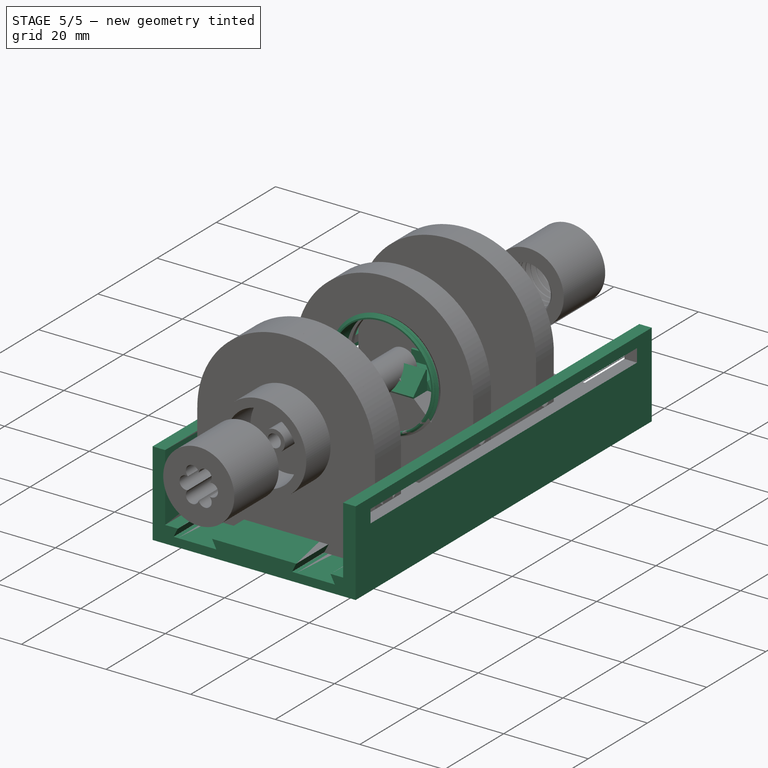
[diagram: stage 5 of 5 — iso view after this stage's code; geometry added in this stage tinted green]
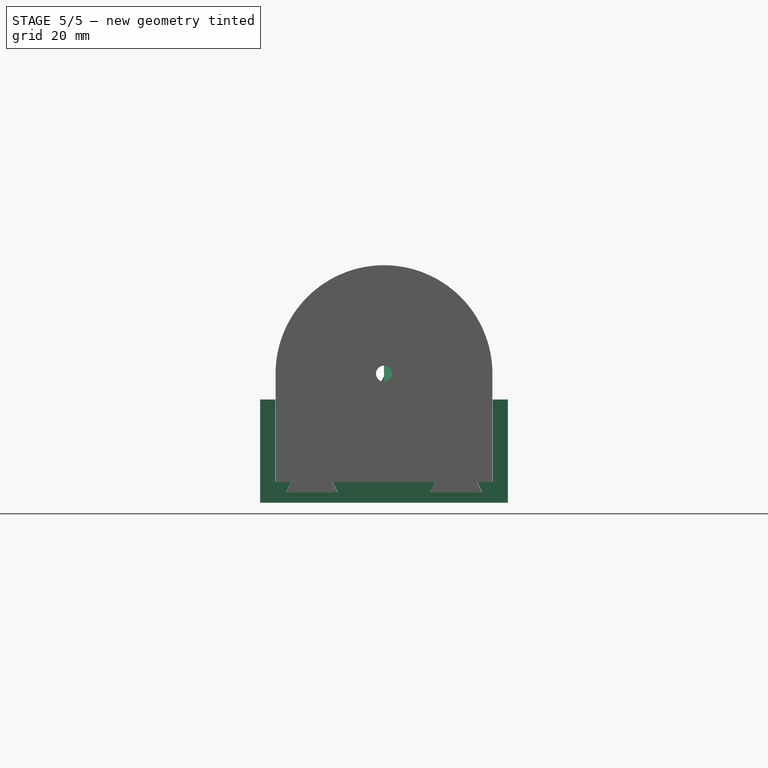
[diagram: stage 5 of 5 — front view after this stage's code; geometry added in this stage tinted green]
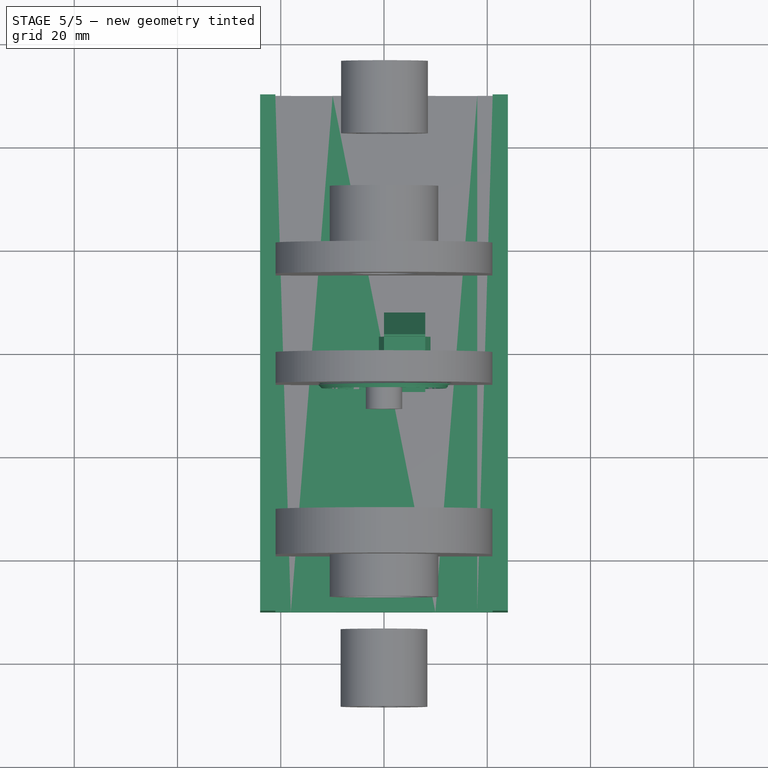
[diagram: stage 5 of 5 — top view after this stage's code; geometry added in this stage tinted green]
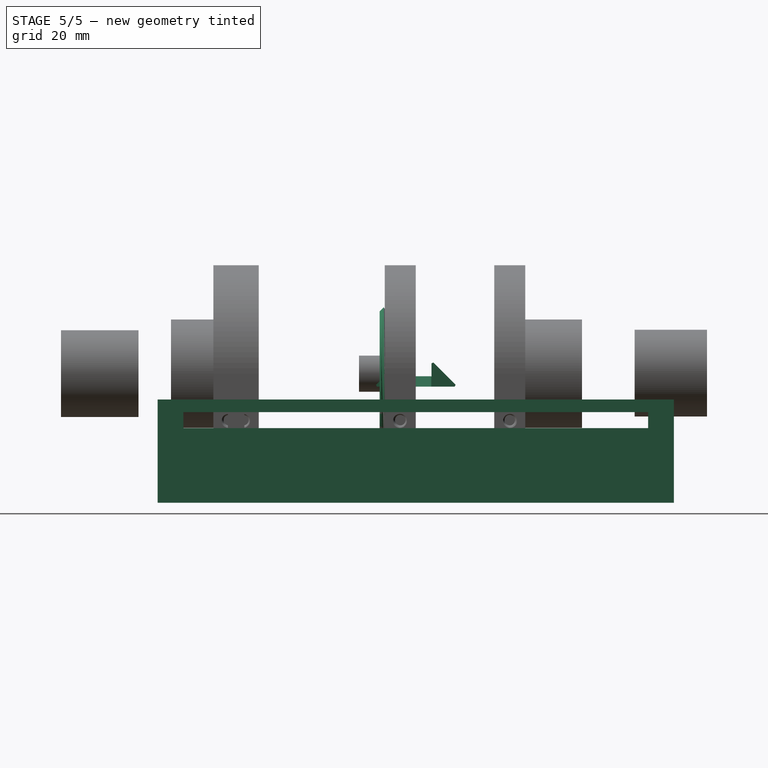
[diagram: stage 5 of 5 — right view after this stage's code; geometry added in this stage tinted green]
FEATURE [Part::FeaturePython] ThreadedRod001  label="25.9 mmx5.0-ThreadedRod"  # Fasteners workbench fastener (typed FeaturePython)
  Placement = pos=(0,-9,-2e-15) rot=(1,0,0;1.5708rad)
  diameter = 27
  diameterCustom = 25.9
  invert = false
  length = 5
  matchOuter = false
  offset = 0
  pitchCustom = 1
  thread = true
  expr: diameterCustom = <<Features>>.LensDiameter + 0.9mm
FEATURE [Part::Cylinder] Cylinder
  Angle = 360
  AttacherType = Attacher::AttachEngine3D
  FirstAngle = 0
  Height = 7
  Placement = pos=(0,-3,-1e-15) rot=(1,0,0;1.5708rad)
  Radius = 11.75
  SecondAngle = 0
  expr: Radius = <<Features>>.LensDiameter / 2 - 0.75mm
FEATURE [Part::Cut] Cut001  label="LensFixer"
  Base = -> ThreadedRod001
  Placement = pos=(0,2,0) rot=(0,0,1;0rad)
  Tool = -> Cylinder
FEATURE [Sketcher::SketchObject] Sketch003  label="Support001"
  FullyConstrained = true
  MapMode = 5
  Placement = pos=(0,0,0) rot=(0.57735,0.57735,0.57735;2.0944rad)
  Support = -> [YZ_Plane001]
  expr: Constraints[17] = <<Features>>.SupportDepth - 0.05mm
  expr: Constraints[7] = <<Features>>.HolderDepth + 0.1mm
  expr: Constraints[8] = (<<Features>>.HolderDepth + 0.1mm) / 2
  sketch-geometry (6):
    g0: LineSegment StartX=-3.05 StartY=2.5 StartZ=0 EndX=-8.05 EndY=-2.5 EndZ=0
    g1: LineSegment StartX=-8.05 StartY=-2.5 StartZ=0 EndX=8.05 EndY=-2.5 EndZ=0
    g2: LineSegment StartX=8.05 StartY=-2.5 StartZ=0 EndX=3.05 EndY=2.5 EndZ=0
    g3: LineSegment StartX=-3.05 StartY=2.5 StartZ=0 EndX=-3.05 EndY=-0.55 EndZ=0
    g4: LineSegment StartX=-3.05 StartY=-0.55 StartZ=0 EndX=3.05 EndY=-0.55 EndZ=0
    g5: LineSegment StartX=3.05 StartY=-0.55 StartZ=0 EndX=3.05 EndY=2.5 EndZ=0
  constraints (18):
    c: Coincident(g0,g1)
    c: Horizontal(g1)
    c: Coincident(g1,g2)
    c: DistanceY(g0,g0) = 5
    c: Angle(g0) = -2.35619
    c: Angle(g2) = 2.35619
    c: DistanceY(g-1,g2) = 2.5
    c: DistanceX(g0,g2) = 6.1
    c: DistanceX(g0,g-1) = 3.05
    c: Coincident(g0,g3)
    c: Vertical(g3)
    c: Coincident(g3,g4)
    c: Horizontal(g4)
    c: Coincident(g4,g5)
    c: Coincident(g5,g2)
    c: Vertical(g5)
    c: Equal(g3,g5)
    c: DistanceY(g1,g4) = 1.95
FEATURE [PartDesign::Pad] Pad001  label="Support01"
  Direction = (1,-2e-16,3e-16)
  Length = 8
  Length2 = 10
  Placement = pos=(0,0,0) rot=(0.57735,0.57735,0.57735;2.0944rad)
  Profile = -> Sketch003
  ReferenceAxis = -> Sketch003 [N_Axis]
  Type = 0
  expr: Length = <<Features>>.SupportWidth
FEATURE [Sketcher::SketchObject] Sketch005  label="BaseMain001"
  FullyConstrained = true
  MapMode = 5
  Support = -> [XY_Plane003]
  expr: Constraints[10] = <<Features>>.MainWidth + 6mm
  expr: Constraints[9] = <<Features>>.BaseLength
  sketch-geometry (4):
    g0: LineSegment StartX=-24 StartY=50 StartZ=0 EndX=24 EndY=50 EndZ=0
    g1: LineSegment StartX=24 StartY=50 StartZ=0 EndX=24 EndY=-50 EndZ=0
    g2: LineSegment StartX=24 StartY=-50 StartZ=0 EndX=-24 EndY=-50 EndZ=0
    g3: LineSegment StartX=-24 StartY=-50 StartZ=0 EndX=-24 EndY=50 EndZ=0
  constraints (11):
    c: Coincident(g0,g1)
    c: Coincident(g1,g2)
    c: Coincident(g2,g3)
    c: Coincident(g3,g0)
    c: Horizontal(g0)
    c: Horizontal(g2)
    c: Vertical(g1)
    c: Vertical(g3)
    c: Symmetric(g0,g1,g-1)
    c: DistanceY(g1,g1) = 100
    c: DistanceX(g0,g0) = 48
FEATURE [PartDesign::Pad] Pad003  label="BaseMain"
  Direction = (0,0,1)
  Length = 20
  Length2 = 10
  Profile = -> Sketch005
  ReferenceAxis = -> Sketch005 [N_Axis]
  Type = 0
  expr: Length = <<Features>>.SupportDepth * 10
FEATURE [Sketcher::SketchObject] Sketch006  label="BaseMainHole001"
  FullyConstrained = true
  MapMode = 5
  Placement = pos=(0,0,20) rot=(0,0,1;0rad)
  Support = -> [Pad003]
  expr: Constraints[10] = <<Features>>.BaseLength
  expr: Constraints[9] = <<Features>>.MainWidth + 0.1mm
  sketch-geometry (4):
    g0: LineSegment StartX=-21.05 StartY=50 StartZ=0 EndX=21.05 EndY=50 EndZ=0
    g1: LineSegment StartX=21.05 StartY=50 StartZ=0 EndX=21.05 EndY=-50 EndZ=0
    g2: LineSegment StartX=21.05 StartY=-50 StartZ=0 EndX=-21.05 EndY=-50 EndZ=0
    g3: LineSegment StartX=-21.05 StartY=-50 StartZ=0 EndX=-21.05 EndY=50 EndZ=0
  constraints (11):
    c: Coincident(g0,g1)
    c: Coincident(g1,g2)
    c: Coincident(g2,g3)
    c: Coincident(g3,g0)
    c: Horizontal(g0)
    c: Horizontal(g2)
    c: Vertical(g1)
    c: Vertical(g3)
    c: Symmetric(g0,g1,g-1)
    c: DistanceX(g0,g0) = 42.1
    c: DistanceY(g1,g1) = 100
FEATURE [PartDesign::Pocket] Pocket002  label="BaseMainHole"
  BaseFeature = -> Pad003
  Direction = (0,0,-1)
  Length = 16
  Length2 = 5
  Profile = -> Sketch006
  ReferenceAxis = -> Sketch006 [N_Axis]
  Type = 0
  expr: Length = <<Features>>.SupportDepth * 8
FEATURE [Sketcher::SketchObject] Sketch007  label="BaseMainRails001"
  FullyConstrained = true
  MapMode = 5
  Placement = pos=(0,0,4) rot=(0,0,1;0rad)
  Support = -> [Pocket002]
  expr: Constraints[20] = <<Features>>.SupportWidth + 0.1mm
  expr: Constraints[21] = <<Features>>.BaseLength
  expr: Constraints[22] = <<Features>>.RailDist - <<Features>>.SupportWidth - 0.1mm
  sketch-geometry (8):
    g0: LineSegment StartX=-18.05 StartY=50 StartZ=0 EndX=-9.95 EndY=50 EndZ=0
    g1: LineSegment StartX=-9.95 StartY=50 StartZ=0 EndX=-9.95 EndY=-50 EndZ=0
    g2: LineSegment StartX=-9.95 StartY=-50 StartZ=0 EndX=-18.05 EndY=-50 EndZ=0
    g3: LineSegment StartX=-18.05 StartY=-50 StartZ=0 EndX=-18.05 EndY=50 EndZ=0
    g4: LineSegment StartX=9.95 StartY=50 StartZ=0 EndX=18.05 EndY=50 EndZ=0
    g5: LineSegment StartX=18.05 StartY=50 StartZ=0 EndX=18.05 EndY=-50 EndZ=0
    g6: LineSegment StartX=18.05 StartY=-50 StartZ=0 EndX=9.95 EndY=-50 EndZ=0
    g7: LineSegment StartX=9.95 StartY=-50 StartZ=0 EndX=9.95 EndY=50 EndZ=0
  constraints (23):
    c: Coincident(g0,g1)
    c: Coincident(g1,g2)
    c: Coincident(g2,g3)
    c: Coincident(g3,g0)
    c: Horizontal(g0)
    c: Horizontal(g2)
    c: Vertical(g1)
    c: Vertical(g3)
    c: Coincident(g4,g5)
    c: Coincident(g5,g6)
    c: Coincident(g6,g7)
    c: Coincident(g7,g4)
    c: Horizontal(g4)
    c: Horizontal(g6)
    c: Vertical(g5)
    c: Vertical(g7)
    c: Equal(g1,g5)
    c: Equal(g0,g4)
    c: Symmetric(g0,g6,g-1)
    c: Horizontal(g0,g4)
    c: DistanceX(g0,g0) = 8.1
    c: DistanceY(g5,g5) = 100
    c: DistanceX(g0,g4) = 19.9
FEATURE [PartDesign::Pocket] Pocket003  label="BaseMainRails"
  BaseFeature = -> Pocket002
  Direction = (0,0,-1)
  Length = 2
  Length2 = 5
  Profile = -> Sketch007
  ReferenceAxis = -> Sketch007 [N_Axis]
  Type = 0
  expr: Length = <<Features>>.SupportDepth
FEATURE [Sketcher::SketchObject] Sketch008  label="RailsFixers001"
  ExternalGeometry = -> [Pocket003]
  FullyConstrained = true
  MapMode = 5
  Placement = pos=(0,-50,0) rot=(1,0,0;1.5708rad)
  Support = -> [Pocket003]
  expr: Constraints[30] = <<Features>>.SupportDepth
  expr: Constraints[31] = <<Features>>.SupportDepth / 2
  sketch-geometry (12):
    g0: LineSegment StartX=-18.05 StartY=2 StartZ=0 EndX=-19.05 EndY=2 EndZ=0
    g1: LineSegment StartX=-19.05 StartY=2 StartZ=0 EndX=-18.05 EndY=4 EndZ=0
    g2: LineSegment StartX=-18.05 StartY=4 StartZ=0 EndX=-18.05 EndY=2 EndZ=0
    g3: LineSegment StartX=-9.95 StartY=2 StartZ=0 EndX=-8.95 EndY=2 EndZ=0
    g4: LineSegment StartX=-8.95 StartY=2 StartZ=0 EndX=-9.95 EndY=4 EndZ=0
    g5: LineSegment StartX=-9.95 StartY=4 StartZ=0 EndX=-9.95 EndY=2 EndZ=0
    g6: LineSegment StartX=9.95 StartY=2 StartZ=0 EndX=8.95 EndY=2 EndZ=0
    g7: LineSegment StartX=8.95 StartY=2 StartZ=0 EndX=9.95 EndY=4 EndZ=0
    g8: LineSegment StartX=9.95 StartY=4 StartZ=0 EndX=9.95 EndY=2 EndZ=0
    g9: LineSegment StartX=18.05 StartY=2 StartZ=0 EndX=19.05 EndY=2 EndZ=0
    g10: LineSegment StartX=19.05 StartY=2 StartZ=0 EndX=18.05 EndY=4 EndZ=0
    g11: LineSegment StartX=18.05 StartY=4 StartZ=0 EndX=18.05 EndY=2 EndZ=0
  constraints (32):
    c: Coincident(g-3,g0)
    c: Horizontal(g0)
    c: Coincident(g0,g1)
    c: Coincident(g1,g2)
    c: Coincident(g2,g0)
    c: Vertical(g2)
    c: Coincident(g-3,g3)
    c: Horizontal(g3)
    c: Coincident(g3,g4)
    c: Coincident(g4,g5)
    c: Coincident(g5,g3)
    c: Vertical(g5)
    c: Coincident(g-4,g6)
    c: Horizontal(g6)
    c: Coincident(g6,g7)
    c: Coincident(g7,g8)
    c: Coincident(g8,g6)
    c: Vertical(g8)
    c: Coincident(g-4,g9)
    c: Horizontal(g9)
    c: Coincident(g9,g10)
    c: Coincident(g10,g11)
    c: Coincident(g11,g9)
    c: Vertical(g11)
    c: Equal(g0,g3)
    c: Equal(g3,g6)
    c: Equal(g6,g9)
    c: Equal(g8,g11)
    c: Equal(g11,g5)
    c: Equal(g5,g2)
    c: DistanceY(g2,g2) = 2
    c: DistanceX(g0,g0) = 1
FEATURE [PartDesign::Pocket] Pocket004  label="RailsFixers"
  BaseFeature = -> Pocket003
  Direction = (0,1,-2e-16)
  Length = 5
  Length2 = 5
  Profile = -> Sketch008
  ReferenceAxis = -> Sketch008 [N_Axis]
  Type = 1
FEATURE [PartDesign::Body] Body003  label="BaseTmp"
  Group = -> [Sketch005,Pad003,Sketch006,Pocket002,Sketch007,Pocket003,Sketch008,Pocket004]
  Origin = -> Origin003
  Placement = pos=(0,0,-25) rot=(0,0,1;0rad)
  Tip = -> Pocket004
FEATURE [Sketcher::SketchObject] Sketch009  label="FixerExtension001"
  FullyConstrained = true
  MapMode = 5
  Placement = pos=(7e-16,-1.1e-15,-2.5) rot=(0.707107,0.707107,0;3.14159rad)
  Support = -> [Pad001]
  expr: Constraints[10] = <<Features>>.HolderDepth
  expr: Constraints[7] = <<Features>>.SupportDepth / 2
  expr: Constraints[8] = <<Features>>.SupportDepth / 2 + <<Features>>.SupportWidth
  sketch-geometry (4):
    g0: LineSegment StartX=-3 StartY=9 StartZ=0 EndX=3 EndY=9 EndZ=0
    g1: LineSegment StartX=3 StartY=9 StartZ=0 EndX=3 EndY=-1 EndZ=0
    g2: LineSegment StartX=3 StartY=-1 StartZ=0 EndX=-3 EndY=-1 EndZ=0
    g3: LineSegment StartX=-3 StartY=-1 StartZ=0 EndX=-3 EndY=9 EndZ=0
  constraints (11):
    c: Coincident(g0,g1)
    c: Coincident(g1,g2)
    c: Coincident(g2,g3)
    c: Coincident(g3,g0)
    c: Horizontal(g2)
    c: Vertical(g1)
    c: Vertical(g3)
    c: DistanceY(g1,g-1) = 1
    c: DistanceY(g-1,g0) = 9
    c: Symmetric(g0,g0,g-2)
    c: DistanceX(g0,g0) = 6
FEATURE [PartDesign::Pad] Pad004  label="FixerExtension"
  BaseFeature = -> Pad001
  Direction = (4e-16,-6e-16,-1)
  Length = 2
  Length2 = 10
  Placement = pos=(0,0,0) rot=(0.57735,0.57735,0.57735;2.0944rad)
  Profile = -> Sketch009
  ReferenceAxis = -> Sketch009 [N_Axis]
  Reversed = true
  Type = 0
  expr: Length = <<Features>>.SupportDepth
FEATURE [Sketcher::SketchObject] Sketch010  label="FixerShape001"
  ExternalGeometry = -> [Pad004]
  FullyConstrained = true
  MapMode = 5
  Placement = pos=(-1.3e-15,-3,1.7e-15) rot=(0.57735,0.57735,-0.57735;2.0944rad)
  Support = -> [Pad004]
  expr: Constraints[6] = <<Features>>.SupportDepth
  expr: Constraints[7] = <<Features>>.SupportDepth / 2
  sketch-geometry (6):
    g0: LineSegment StartX=2.5 StartY=9 StartZ=0 EndX=0.5 EndY=9 EndZ=0
    g1: LineSegment StartX=0.5 StartY=9 StartZ=0 EndX=0.5 EndY=8 EndZ=0
    g2: LineSegment StartX=0.5 StartY=8 StartZ=0 EndX=2.5 EndY=9 EndZ=0
    g3: LineSegment StartX=2.5 StartY=-1 StartZ=0 EndX=0.5 EndY=-1 EndZ=0
    g4: LineSegment StartX=0.5 StartY=-1 StartZ=0 EndX=0.5 EndY=0 EndZ=0
    g5: LineSegment StartX=0.5 StartY=0 StartZ=0 EndX=2.5 EndY=-1 EndZ=0
  constraints (16):
    c: Coincident(g-3,g0)
    c: Horizontal(g0)
    c: Coincident(g0,g1)
    c: Vertical(g1)
    c: Coincident(g1,g2)
    c: Coincident(g2,g0)
    c: DistanceX(g0,g0) = 2
    c: DistanceY(g1,g1) = 1
    c: Coincident(g-4,g3)
    c: Horizontal(g3)
    c: Coincident(g3,g4)
    c: PointOnObject(g4,g-1)
    c: Vertical(g4)
    c: Coincident(g4,g5)
    c: Coincident(g5,g3)
    c: Equal(g3,g0)
FEATURE [PartDesign::Pocket] Pocket005  label="FixerShape"
  BaseFeature = -> Pad004
  Direction = (7e-16,1,-4e-16)
  Length = 5
  Length2 = 5
  Placement = pos=(0,0,0) rot=(0.57735,0.57735,0.57735;2.0944rad)
  Profile = -> Sketch010
  ReferenceAxis = -> Sketch010 [N_Axis]
  Type = 1
FEATURE [PartDesign::Chamfer] Chamfer
  Angle = 45
  Base = -> Pocket005 [Edge1,Edge43,Edge2,Edge27]
  BaseFeature = -> Pocket005
  ChamferType = 0
  FlipDirection = false
  Placement = pos=(0,0,0) rot=(0.57735,0.57735,0.57735;2.0944rad)
  Size = 0.5
  Size2 = 1
  SupportTransform = false
  UseAllEdges = false
FEATURE [Part::Cut] Cut002  label="Base"
  Base = -> Body003
  Tool = -> Box
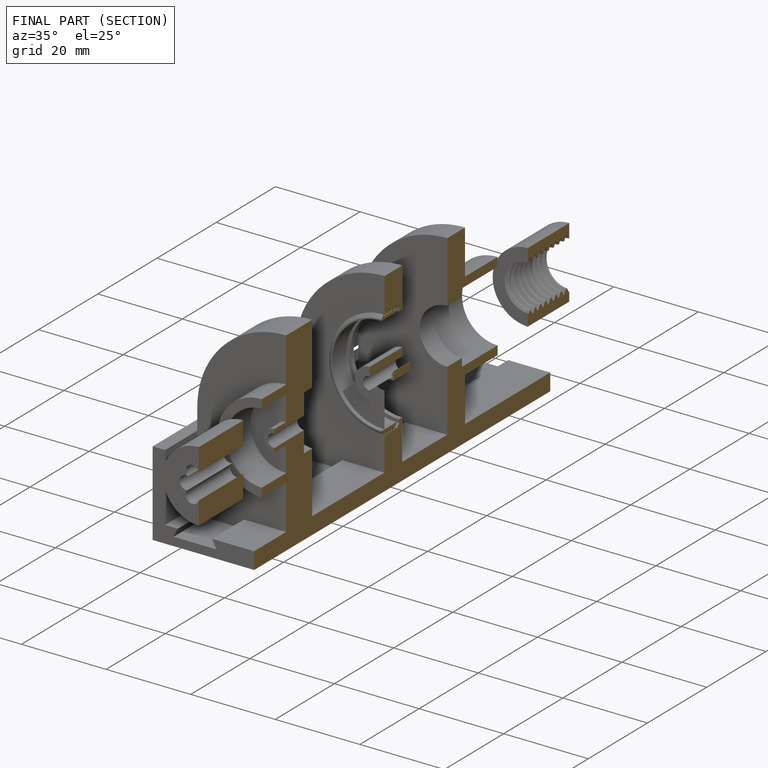
[diagram: finished part — half-section view (interior)]
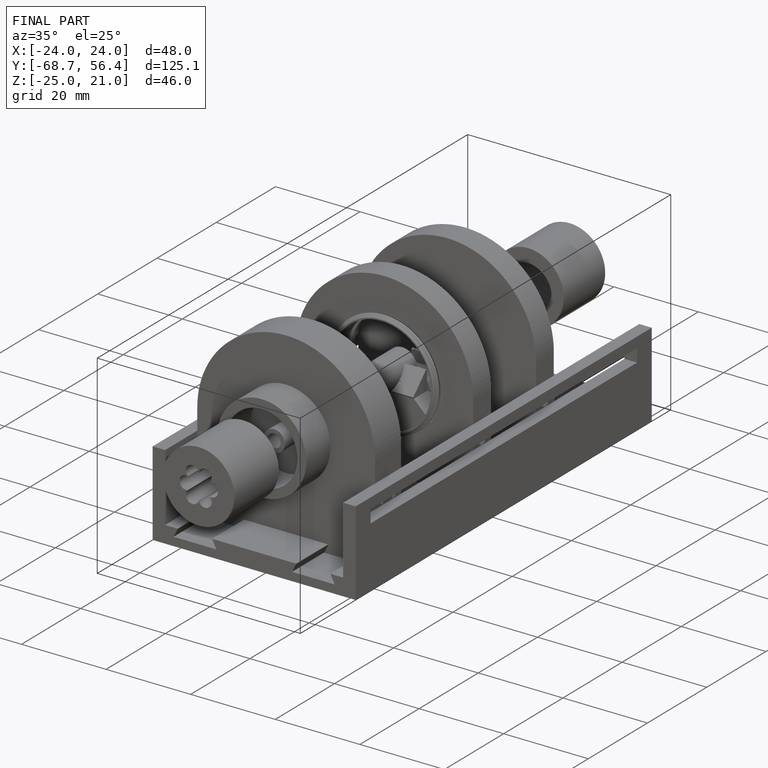
[diagram: finished part — iso view with bounding-box wireframe]
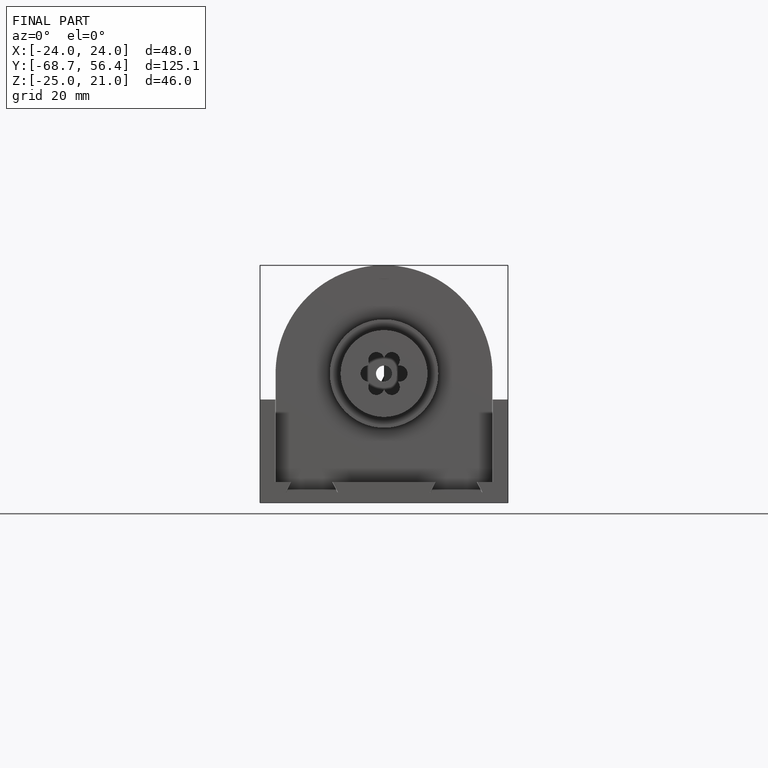
[diagram: finished part — front view with bounding-box wireframe]
